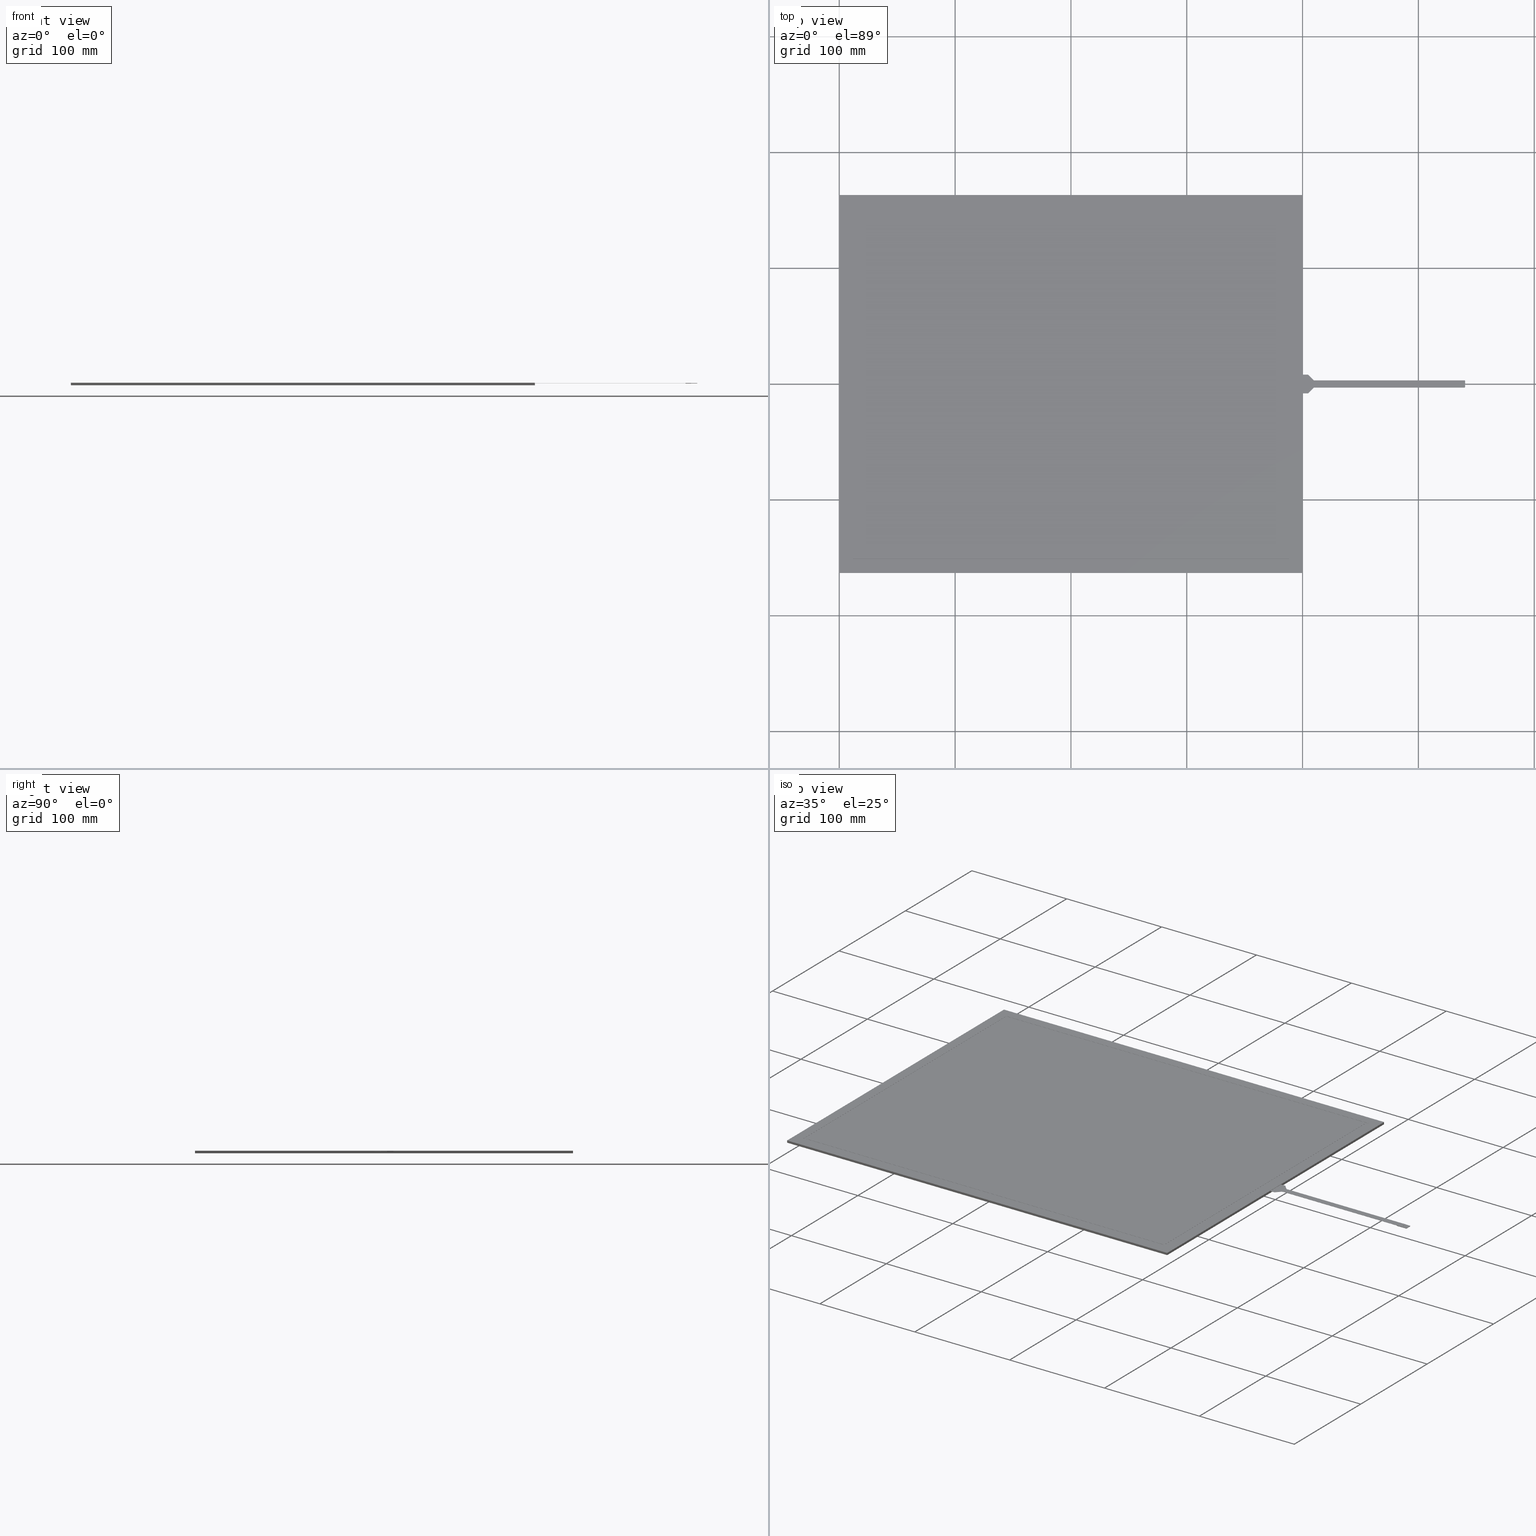
[diagram: canonical four-view strip — front | top / right | iso, engineering-drawing reading convention]
A machine part, canonical four-view strip (front | top / right | iso — engineering-drawing reading convention). The complete STEP part file that produces these views, byte-faithful:
ISO-10303-21;
HEADER;
/* Generated by software containing ST-Developer
 * from STEP Tools, Inc. (www.steptools.com) 
 */

FILE_DESCRIPTION(
/* description */ (''),
/* implementation_level */ '2;1');

FILE_NAME(
/* name */ 
'\\\\172.16.4.5\\\X2\65B06280885390E8\X0\$\\03 \X2\8A2D8A0830C730FC30BF\X0\\\
\X2\62B56297819C\X0\\\\X2\6A196E9654C1\X0\\\13. HP\X2\752856F39762\X0\\\
1. AST\\3D\X2\30C730FC30BF\X0\\\AST-190A140A\\AST-190A140A.stp',
/* time_stamp */ '2023-08-08T17:43:09+09:00',
/* author */ ('n-hirata'),
/* organization */ (''),
/* preprocessor_version */ 'ST-DEVELOPER v18.1',
/* originating_system */ 'Autodesk Inventor 2020',
/* authorisation */ '');

FILE_SCHEMA (('CONFIG_CONTROL_DESIGN'));
ENDSEC;

DATA;
#10=MECHANICAL_DESIGN_GEOMETRIC_PRESENTATION_REPRESENTATION('',(#30,#31,
#32,#33,#34,#35,#36,#37,#38,#39,#40,#41,#42,#43,#44),#1571);
#11=GEOMETRICALLY_BOUNDED_WIREFRAME_SHAPE_REPRESENTATION('',(#12),#1570);
#12=GEOMETRIC_CURVE_SET('\X2\30B930B130C330C1\X0\1',(#16,#17,#18,#19,#20,
#21,#22,#23,#24,#25,#26,#27,#28,#29));
#13=SHAPE_REPRESENTATION_RELATIONSHIP('SRR','None',#1578,#15);
#14=SHAPE_REPRESENTATION_RELATIONSHIP('SRR','None',#1578,#11);
#15=ADVANCED_BREP_SHAPE_REPRESENTATION('',(#45),#1570);
#16=POLYLINE('',(#1540,#1541));
#17=POLYLINE('',(#1542,#1543));
#18=POLYLINE('',(#1544,#1545));
#19=POLYLINE('',(#1546,#1547));
#20=POLYLINE('',(#1548,#1549));
#21=POLYLINE('',(#1550,#1551));
#22=POLYLINE('',(#1552,#1553));
#23=POLYLINE('',(#1554,#1555));
#24=POLYLINE('',(#1556,#1557));
#25=POLYLINE('',(#1558,#1559));
#26=POLYLINE('',(#1560,#1561));
#27=POLYLINE('',(#1562,#1563));
#28=POLYLINE('',(#1564,#1565));
#29=POLYLINE('',(#1566,#1567));
#30=STYLED_ITEM('',(#1587),#45);
#31=STYLED_ITEM('',(#1588),#16);
#32=STYLED_ITEM('',(#1588),#17);
#33=STYLED_ITEM('',(#1589),#18);
#34=STYLED_ITEM('',(#1589),#19);
#35=STYLED_ITEM('',(#1589),#20);
#36=STYLED_ITEM('',(#1589),#21);
#37=STYLED_ITEM('',(#1589),#22);
#38=STYLED_ITEM('',(#1589),#23);
#39=STYLED_ITEM('',(#1589),#24);
#40=STYLED_ITEM('',(#1589),#25);
#41=STYLED_ITEM('',(#1589),#26);
#42=STYLED_ITEM('',(#1589),#27);
#43=STYLED_ITEM('',(#1589),#28);
#44=STYLED_ITEM('',(#1589),#29);
#45=MANIFOLD_SOLID_BREP('\X2\30BD30EA30C330C9\X0\2',#969);
#46=FACE_BOUND('',#183,.T.);
#47=FACE_BOUND('',#185,.T.);
#48=FACE_BOUND('',#189,.T.);
#49=PLANE('',#992);
#50=PLANE('',#993);
#51=PLANE('',#997);
#52=PLANE('',#998);
#53=PLANE('',#1002);
#54=PLANE('',#1003);
#55=PLANE('',#1004);
#56=PLANE('',#1005);
#57=PLANE('',#1006);
#58=PLANE('',#1007);
#59=PLANE('',#1008);
#60=PLANE('',#1009);
#61=PLANE('',#1010);
#62=PLANE('',#1011);
#63=PLANE('',#1012);
#64=PLANE('',#1013);
#65=PLANE('',#1014);
#66=PLANE('',#1015);
#67=PLANE('',#1016);
#68=PLANE('',#1017);
#69=PLANE('',#1018);
#70=PLANE('',#1019);
#71=PLANE('',#1020);
#72=PLANE('',#1021);
#73=PLANE('',#1022);
#74=PLANE('',#1023);
#75=PLANE('',#1024);
#76=PLANE('',#1025);
#77=PLANE('',#1026);
#78=PLANE('',#1027);
#79=PLANE('',#1028);
#80=PLANE('',#1029);
#81=PLANE('',#1030);
#82=PLANE('',#1031);
#83=PLANE('',#1032);
#84=PLANE('',#1033);
#85=PLANE('',#1034);
#86=PLANE('',#1035);
#87=PLANE('',#1036);
#88=PLANE('',#1037);
#89=PLANE('',#1038);
#90=PLANE('',#1039);
#91=PLANE('',#1040);
#92=PLANE('',#1041);
#93=PLANE('',#1042);
#94=FACE_OUTER_BOUND('',#142,.T.);
#95=FACE_OUTER_BOUND('',#143,.T.);
#96=FACE_OUTER_BOUND('',#144,.T.);
#97=FACE_OUTER_BOUND('',#145,.T.);
#98=FACE_OUTER_BOUND('',#146,.T.);
#99=FACE_OUTER_BOUND('',#147,.T.);
#100=FACE_OUTER_BOUND('',#148,.T.);
#101=FACE_OUTER_BOUND('',#149,.T.);
#102=FACE_OUTER_BOUND('',#150,.T.);
#103=FACE_OUTER_BOUND('',#151,.T.);
#104=FACE_OUTER_BOUND('',#152,.T.);
#105=FACE_OUTER_BOUND('',#153,.T.);
#106=FACE_OUTER_BOUND('',#154,.T.);
#107=FACE_OUTER_BOUND('',#155,.T.);
#108=FACE_OUTER_BOUND('',#156,.T.);
#109=FACE_OUTER_BOUND('',#157,.T.);
#110=FACE_OUTER_BOUND('',#158,.T.);
#111=FACE_OUTER_BOUND('',#159,.T.);
#112=FACE_OUTER_BOUND('',#160,.T.);
#113=FACE_OUTER_BOUND('',#161,.T.);
#114=FACE_OUTER_BOUND('',#162,.T.);
#115=FACE_OUTER_BOUND('',#163,.T.);
#116=FACE_OUTER_BOUND('',#164,.T.);
#117=FACE_OUTER_BOUND('',#165,.T.);
#118=FACE_OUTER_BOUND('',#166,.T.);
#119=FACE_OUTER_BOUND('',#167,.T.);
#120=FACE_OUTER_BOUND('',#168,.T.);
#121=FACE_OUTER_BOUND('',#169,.T.);
#122=FACE_OUTER_BOUND('',#170,.T.);
#123=FACE_OUTER_BOUND('',#171,.T.);
#124=FACE_OUTER_BOUND('',#172,.T.);
#125=FACE_OUTER_BOUND('',#173,.T.);
#126=FACE_OUTER_BOUND('',#174,.T.);
#127=FACE_OUTER_BOUND('',#175,.T.);
#128=FACE_OUTER_BOUND('',#176,.T.);
#129=FACE_OUTER_BOUND('',#177,.T.);
#130=FACE_OUTER_BOUND('',#178,.T.);
#131=FACE_OUTER_BOUND('',#179,.T.);
#132=FACE_OUTER_BOUND('',#180,.T.);
#133=FACE_OUTER_BOUND('',#181,.T.);
#134=FACE_OUTER_BOUND('',#182,.T.);
#135=FACE_OUTER_BOUND('',#184,.T.);
#136=FACE_OUTER_BOUND('',#186,.T.);
#137=FACE_OUTER_BOUND('',#187,.T.);
#138=FACE_OUTER_BOUND('',#188,.T.);
#139=FACE_OUTER_BOUND('',#190,.T.);
#140=FACE_OUTER_BOUND('',#191,.T.);
#141=FACE_OUTER_BOUND('',#192,.T.);
#142=EDGE_LOOP('',(#660,#661,#662,#663));
#143=EDGE_LOOP('',(#664,#665,#666,#667,#668,#669,#670,#671,#672));
#144=EDGE_LOOP('',(#673,#674,#675,#676));
#145=EDGE_LOOP('',(#677,#678,#679,#680));
#146=EDGE_LOOP('',(#681,#682,#683,#684,#685,#686,#687,#688,#689,#690,#691,
#692,#693,#694,#695,#696,#697,#698,#699,#700));
#147=EDGE_LOOP('',(#701,#702,#703,#704,#705));
#148=EDGE_LOOP('',(#706,#707,#708,#709));
#149=EDGE_LOOP('',(#710,#711,#712,#713,#714,#715,#716,#717));
#150=EDGE_LOOP('',(#718,#719,#720,#721,#722));
#151=EDGE_LOOP('',(#723,#724,#725,#726));
#152=EDGE_LOOP('',(#727,#728,#729,#730));
#153=EDGE_LOOP('',(#731,#732,#733,#734));
#154=EDGE_LOOP('',(#735,#736,#737,#738));
#155=EDGE_LOOP('',(#739,#740,#741,#742));
#156=EDGE_LOOP('',(#743,#744,#745,#746));
#157=EDGE_LOOP('',(#747,#748,#749,#750));
#158=EDGE_LOOP('',(#751,#752,#753,#754));
#159=EDGE_LOOP('',(#755,#756,#757,#758));
#160=EDGE_LOOP('',(#759,#760,#761,#762));
#161=EDGE_LOOP('',(#763,#764,#765,#766));
#162=EDGE_LOOP('',(#767,#768,#769,#770));
#163=EDGE_LOOP('',(#771,#772,#773,#774));
#164=EDGE_LOOP('',(#775,#776,#777,#778));
#165=EDGE_LOOP('',(#779,#780,#781,#782));
#166=EDGE_LOOP('',(#783,#784,#785,#786,#787,#788,#789,#790,#791,#792,#793,
#794,#795,#796,#797,#798,#799,#800,#801,#802));
#167=EDGE_LOOP('',(#803,#804,#805,#806));
#168=EDGE_LOOP('',(#807,#808,#809,#810,#811,#812));
#169=EDGE_LOOP('',(#813,#814,#815,#816));
#170=EDGE_LOOP('',(#817,#818,#819,#820));
#171=EDGE_LOOP('',(#821,#822,#823,#824));
#172=EDGE_LOOP('',(#825,#826,#827,#828,#829,#830,#831,#832));
#173=EDGE_LOOP('',(#833,#834,#835,#836,#837,#838,#839,#840,#841));
#174=EDGE_LOOP('',(#842,#843,#844,#845));
#175=EDGE_LOOP('',(#846,#847,#848,#849));
#176=EDGE_LOOP('',(#850,#851,#852,#853));
#177=EDGE_LOOP('',(#854,#855,#856,#857));
#178=EDGE_LOOP('',(#858,#859,#860,#861));
#179=EDGE_LOOP('',(#862,#863,#864,#865));
#180=EDGE_LOOP('',(#866,#867,#868,#869));
#181=EDGE_LOOP('',(#870,#871,#872,#873));
#182=EDGE_LOOP('',(#874,#875,#876,#877));
#183=EDGE_LOOP('',(#878,#879,#880,#881));
#184=EDGE_LOOP('',(#882,#883,#884,#885));
#185=EDGE_LOOP('',(#886,#887,#888,#889));
#186=EDGE_LOOP('',(#890,#891,#892,#893));
#187=EDGE_LOOP('',(#894,#895,#896,#897));
#188=EDGE_LOOP('',(#898,#899,#900,#901));
#189=EDGE_LOOP('',(#902,#903,#904,#905));
#190=EDGE_LOOP('',(#906,#907,#908,#909));
#191=EDGE_LOOP('',(#910,#911,#912,#913));
#192=EDGE_LOOP('',(#914,#915,#916,#917));
#193=LINE('',#1282,#316);
#194=LINE('',#1285,#317);
#195=LINE('',#1288,#318);
#196=LINE('',#1290,#319);
#197=LINE('',#1292,#320);
#198=LINE('',#1294,#321);
#199=LINE('',#1296,#322);
#200=LINE('',#1298,#323);
#201=LINE('',#1300,#324);
#202=LINE('',#1301,#325);
#203=LINE('',#1304,#326);
#204=LINE('',#1305,#327);
#205=LINE('',#1311,#328);
#206=LINE('',#1314,#329);
#207=LINE('',#1317,#330);
#208=LINE('',#1319,#331);
#209=LINE('',#1321,#332);
#210=LINE('',#1323,#333);
#211=LINE('',#1325,#334);
#212=LINE('',#1327,#335);
#213=LINE('',#1329,#336);
#214=LINE('',#1331,#337);
#215=LINE('',#1333,#338);
#216=LINE('',#1335,#339);
#217=LINE('',#1337,#340);
#218=LINE('',#1339,#341);
#219=LINE('',#1341,#342);
#220=LINE('',#1343,#343);
#221=LINE('',#1345,#344);
#222=LINE('',#1347,#345);
#223=LINE('',#1349,#346);
#224=LINE('',#1351,#347);
#225=LINE('',#1352,#348);
#226=LINE('',#1355,#349);
#227=LINE('',#1357,#350);
#228=LINE('',#1358,#351);
#229=LINE('',#1364,#352);
#230=LINE('',#1367,#353);
#231=LINE('',#1369,#354);
#232=LINE('',#1371,#355);
#233=LINE('',#1372,#356);
#234=LINE('',#1374,#357);
#235=LINE('',#1375,#358);
#236=LINE('',#1378,#359);
#237=LINE('',#1379,#360);
#238=LINE('',#1382,#361);
#239=LINE('',#1384,#362);
#240=LINE('',#1385,#363);
#241=LINE('',#1388,#364);
#242=LINE('',#1389,#365);
#243=LINE('',#1391,#366);
#244=LINE('',#1394,#367);
#245=LINE('',#1396,#368);
#246=LINE('',#1397,#369);
#247=LINE('',#1400,#370);
#248=LINE('',#1402,#371);
#249=LINE('',#1403,#372);
#250=LINE('',#1405,#373);
#251=LINE('',#1408,#374);
#252=LINE('',#1410,#375);
#253=LINE('',#1411,#376);
#254=LINE('',#1414,#377);
#255=LINE('',#1416,#378);
#256=LINE('',#1417,#379);
#257=LINE('',#1419,#380);
#258=LINE('',#1422,#381);
#259=LINE('',#1423,#382);
#260=LINE('',#1425,#383);
#261=LINE('',#1428,#384);
#262=LINE('',#1429,#385);
#263=LINE('',#1432,#386);
#264=LINE('',#1433,#387);
#265=LINE('',#1435,#388);
#266=LINE('',#1437,#389);
#267=LINE('',#1440,#390);
#268=LINE('',#1441,#391);
#269=LINE('',#1444,#392);
#270=LINE('',#1445,#393);
#271=LINE('',#1447,#394);
#272=LINE('',#1450,#395);
#273=LINE('',#1451,#396);
#274=LINE('',#1455,#397);
#275=LINE('',#1456,#398);
#276=LINE('',#1457,#399);
#277=LINE('',#1459,#400);
#278=LINE('',#1461,#401);
#279=LINE('',#1463,#402);
#280=LINE('',#1467,#403);
#281=LINE('',#1469,#404);
#282=LINE('',#1471,#405);
#283=LINE('',#1472,#406);
#284=LINE('',#1475,#407);
#285=LINE('',#1477,#408);
#286=LINE('',#1478,#409);
#287=LINE('',#1481,#410);
#288=LINE('',#1483,#411);
#289=LINE('',#1484,#412);
#290=LINE('',#1486,#413);
#291=LINE('',#1487,#414);
#292=LINE('',#1491,#415);
#293=LINE('',#1493,#416);
#294=LINE('',#1495,#417);
#295=LINE('',#1496,#418);
#296=LINE('',#1499,#419);
#297=LINE('',#1501,#420);
#298=LINE('',#1502,#421);
#299=LINE('',#1505,#422);
#300=LINE('',#1507,#423);
#301=LINE('',#1508,#424);
#302=LINE('',#1510,#425);
#303=LINE('',#1511,#426);
#304=LINE('',#1516,#427);
#305=LINE('',#1518,#428);
#306=LINE('',#1520,#429);
#307=LINE('',#1521,#430);
#308=LINE('',#1524,#431);
#309=LINE('',#1526,#432);
#310=LINE('',#1527,#433);
#311=LINE('',#1530,#434);
#312=LINE('',#1531,#435);
#313=LINE('',#1534,#436);
#314=LINE('',#1535,#437);
#315=LINE('',#1537,#438);
#316=VECTOR('',#1049,10.);
#317=VECTOR('',#1052,10.);
#318=VECTOR('',#1055,10.);
#319=VECTOR('',#1056,10.);
#320=VECTOR('',#1057,10.);
#321=VECTOR('',#1058,10.);
#322=VECTOR('',#1059,10.);
#323=VECTOR('',#1060,10.);
#324=VECTOR('',#1061,10.);
#325=VECTOR('',#1062,10.);
#326=VECTOR('',#1065,10.);
#327=VECTOR('',#1066,10.);
#328=VECTOR('',#1071,10.);
#329=VECTOR('',#1074,10.);
#330=VECTOR('',#1077,10.);
#331=VECTOR('',#1078,10.);
#332=VECTOR('',#1079,10.);
#333=VECTOR('',#1080,10.);
#334=VECTOR('',#1081,10.);
#335=VECTOR('',#1082,10.);
#336=VECTOR('',#1083,10.);
#337=VECTOR('',#1084,10.);
#338=VECTOR('',#1085,10.);
#339=VECTOR('',#1086,10.);
#340=VECTOR('',#1087,10.);
#341=VECTOR('',#1088,10.);
#342=VECTOR('',#1089,10.);
#343=VECTOR('',#1090,10.);
#344=VECTOR('',#1091,10.);
#345=VECTOR('',#1092,10.);
#346=VECTOR('',#1093,10.);
#347=VECTOR('',#1094,10.);
#348=VECTOR('',#1095,10.);
#349=VECTOR('',#1098,10.);
#350=VECTOR('',#1099,10.);
#351=VECTOR('',#1100,10.);
#352=VECTOR('',#1107,10.);
#353=VECTOR('',#1110,10.);
#354=VECTOR('',#1111,10.);
#355=VECTOR('',#1112,10.);
#356=VECTOR('',#1113,10.);
#357=VECTOR('',#1114,10.);
#358=VECTOR('',#1115,10.);
#359=VECTOR('',#1118,10.);
#360=VECTOR('',#1119,10.);
#361=VECTOR('',#1122,10.);
#362=VECTOR('',#1123,10.);
#363=VECTOR('',#1124,10.);
#364=VECTOR('',#1127,10.);
#365=VECTOR('',#1128,10.);
#366=VECTOR('',#1131,10.);
#367=VECTOR('',#1134,10.);
#368=VECTOR('',#1135,10.);
#369=VECTOR('',#1136,10.);
#370=VECTOR('',#1139,10.);
#371=VECTOR('',#1140,10.);
#372=VECTOR('',#1141,10.);
#373=VECTOR('',#1144,10.);
#374=VECTOR('',#1147,10.);
#375=VECTOR('',#1148,10.);
#376=VECTOR('',#1149,10.);
#377=VECTOR('',#1152,10.);
#378=VECTOR('',#1153,10.);
#379=VECTOR('',#1154,10.);
#380=VECTOR('',#1157,10.);
#381=VECTOR('',#1160,10.);
#382=VECTOR('',#1161,10.);
#383=VECTOR('',#1164,10.);
#384=VECTOR('',#1167,10.);
#385=VECTOR('',#1168,10.);
#386=VECTOR('',#1171,10.);
#387=VECTOR('',#1172,10.);
#388=VECTOR('',#1175,10.);
#389=VECTOR('',#1178,10.);
#390=VECTOR('',#1181,10.);
#391=VECTOR('',#1182,10.);
#392=VECTOR('',#1185,10.);
#393=VECTOR('',#1186,10.);
#394=VECTOR('',#1189,10.);
#395=VECTOR('',#1192,10.);
#396=VECTOR('',#1193,10.);
#397=VECTOR('',#1196,10.);
#398=VECTOR('',#1197,10.);
#399=VECTOR('',#1198,10.);
#400=VECTOR('',#1201,10.);
#401=VECTOR('',#1204,10.);
#402=VECTOR('',#1207,10.);
#403=VECTOR('',#1210,10.);
#404=VECTOR('',#1211,10.);
#405=VECTOR('',#1212,10.);
#406=VECTOR('',#1213,10.);
#407=VECTOR('',#1216,10.);
#408=VECTOR('',#1217,10.);
#409=VECTOR('',#1218,10.);
#410=VECTOR('',#1221,10.);
#411=VECTOR('',#1222,10.);
#412=VECTOR('',#1223,10.);
#413=VECTOR('',#1226,10.);
#414=VECTOR('',#1227,10.);
#415=VECTOR('',#1230,10.);
#416=VECTOR('',#1231,10.);
#417=VECTOR('',#1232,10.);
#418=VECTOR('',#1233,10.);
#419=VECTOR('',#1236,10.);
#420=VECTOR('',#1237,10.);
#421=VECTOR('',#1238,10.);
#422=VECTOR('',#1241,10.);
#423=VECTOR('',#1242,10.);
#424=VECTOR('',#1243,10.);
#425=VECTOR('',#1246,10.);
#426=VECTOR('',#1247,10.);
#427=VECTOR('',#1252,10.);
#428=VECTOR('',#1253,10.);
#429=VECTOR('',#1254,10.);
#430=VECTOR('',#1255,10.);
#431=VECTOR('',#1258,10.);
#432=VECTOR('',#1259,10.);
#433=VECTOR('',#1260,10.);
#434=VECTOR('',#1263,10.);
#435=VECTOR('',#1264,10.);
#436=VECTOR('',#1267,10.);
#437=VECTOR('',#1268,10.);
#438=VECTOR('',#1271,10.);
#439=CIRCLE('',#990,1.);
#440=CIRCLE('',#991,1.);
#441=CIRCLE('',#995,0.5);
#442=CIRCLE('',#996,0.5);
#443=CIRCLE('',#1000,0.5);
#444=CIRCLE('',#1001,0.5);
#445=VERTEX_POINT('',#1278);
#446=VERTEX_POINT('',#1279);
#447=VERTEX_POINT('',#1281);
#448=VERTEX_POINT('',#1283);
#449=VERTEX_POINT('',#1287);
#450=VERTEX_POINT('',#1289);
#451=VERTEX_POINT('',#1291);
#452=VERTEX_POINT('',#1293);
#453=VERTEX_POINT('',#1295);
#454=VERTEX_POINT('',#1297);
#455=VERTEX_POINT('',#1299);
#456=VERTEX_POINT('',#1303);
#457=VERTEX_POINT('',#1307);
#458=VERTEX_POINT('',#1308);
#459=VERTEX_POINT('',#1310);
#460=VERTEX_POINT('',#1312);
#461=VERTEX_POINT('',#1316);
#462=VERTEX_POINT('',#1318);
#463=VERTEX_POINT('',#1320);
#464=VERTEX_POINT('',#1322);
#465=VERTEX_POINT('',#1324);
#466=VERTEX_POINT('',#1326);
#467=VERTEX_POINT('',#1328);
#468=VERTEX_POINT('',#1330);
#469=VERTEX_POINT('',#1332);
#470=VERTEX_POINT('',#1334);
#471=VERTEX_POINT('',#1336);
#472=VERTEX_POINT('',#1338);
#473=VERTEX_POINT('',#1340);
#474=VERTEX_POINT('',#1342);
#475=VERTEX_POINT('',#1344);
#476=VERTEX_POINT('',#1346);
#477=VERTEX_POINT('',#1348);
#478=VERTEX_POINT('',#1350);
#479=VERTEX_POINT('',#1354);
#480=VERTEX_POINT('',#1356);
#481=VERTEX_POINT('',#1360);
#482=VERTEX_POINT('',#1362);
#483=VERTEX_POINT('',#1366);
#484=VERTEX_POINT('',#1368);
#485=VERTEX_POINT('',#1370);
#486=VERTEX_POINT('',#1373);
#487=VERTEX_POINT('',#1377);
#488=VERTEX_POINT('',#1381);
#489=VERTEX_POINT('',#1383);
#490=VERTEX_POINT('',#1387);
#491=VERTEX_POINT('',#1393);
#492=VERTEX_POINT('',#1395);
#493=VERTEX_POINT('',#1399);
#494=VERTEX_POINT('',#1401);
#495=VERTEX_POINT('',#1407);
#496=VERTEX_POINT('',#1409);
#497=VERTEX_POINT('',#1413);
#498=VERTEX_POINT('',#1415);
#499=VERTEX_POINT('',#1421);
#500=VERTEX_POINT('',#1427);
#501=VERTEX_POINT('',#1431);
#502=VERTEX_POINT('',#1439);
#503=VERTEX_POINT('',#1443);
#504=VERTEX_POINT('',#1449);
#505=VERTEX_POINT('',#1453);
#506=VERTEX_POINT('',#1454);
#507=VERTEX_POINT('',#1465);
#508=VERTEX_POINT('',#1466);
#509=VERTEX_POINT('',#1468);
#510=VERTEX_POINT('',#1470);
#511=VERTEX_POINT('',#1474);
#512=VERTEX_POINT('',#1476);
#513=VERTEX_POINT('',#1480);
#514=VERTEX_POINT('',#1482);
#515=VERTEX_POINT('',#1489);
#516=VERTEX_POINT('',#1490);
#517=VERTEX_POINT('',#1492);
#518=VERTEX_POINT('',#1494);
#519=VERTEX_POINT('',#1498);
#520=VERTEX_POINT('',#1500);
#521=VERTEX_POINT('',#1504);
#522=VERTEX_POINT('',#1506);
#523=VERTEX_POINT('',#1514);
#524=VERTEX_POINT('',#1515);
#525=VERTEX_POINT('',#1517);
#526=VERTEX_POINT('',#1519);
#527=VERTEX_POINT('',#1523);
#528=VERTEX_POINT('',#1525);
#529=VERTEX_POINT('',#1529);
#530=VERTEX_POINT('',#1533);
#531=EDGE_CURVE('',#445,#446,#439,.T.);
#532=EDGE_CURVE('',#446,#447,#193,.T.);
#533=EDGE_CURVE('',#447,#448,#440,.T.);
#534=EDGE_CURVE('',#448,#445,#194,.T.);
#535=EDGE_CURVE('',#445,#449,#195,.T.);
#536=EDGE_CURVE('',#449,#450,#196,.T.);
#537=EDGE_CURVE('',#450,#451,#197,.T.);
#538=EDGE_CURVE('',#451,#452,#198,.T.);
#539=EDGE_CURVE('',#452,#453,#199,.T.);
#540=EDGE_CURVE('',#453,#454,#200,.T.);
#541=EDGE_CURVE('',#455,#454,#201,.T.);
#542=EDGE_CURVE('',#455,#446,#202,.T.);
#543=EDGE_CURVE('',#456,#448,#203,.T.);
#544=EDGE_CURVE('',#456,#449,#204,.T.);
#545=EDGE_CURVE('',#457,#458,#441,.T.);
#546=EDGE_CURVE('',#458,#459,#205,.T.);
#547=EDGE_CURVE('',#459,#460,#442,.T.);
#548=EDGE_CURVE('',#460,#457,#206,.T.);
#549=EDGE_CURVE('',#460,#461,#207,.T.);
#550=EDGE_CURVE('',#461,#462,#208,.T.);
#551=EDGE_CURVE('',#463,#462,#209,.T.);
#552=EDGE_CURVE('',#464,#463,#210,.T.);
#553=EDGE_CURVE('',#464,#465,#211,.T.);
#554=EDGE_CURVE('',#465,#466,#212,.T.);
#555=EDGE_CURVE('',#467,#466,#213,.T.);
#556=EDGE_CURVE('',#468,#467,#214,.T.);
#557=EDGE_CURVE('',#468,#469,#215,.T.);
#558=EDGE_CURVE('',#469,#470,#216,.T.);
#559=EDGE_CURVE('',#471,#470,#217,.T.);
#560=EDGE_CURVE('',#472,#471,#218,.T.);
#561=EDGE_CURVE('',#472,#473,#219,.T.);
#562=EDGE_CURVE('',#473,#474,#220,.T.);
#563=EDGE_CURVE('',#475,#474,#221,.T.);
#564=EDGE_CURVE('',#476,#475,#222,.T.);
#565=EDGE_CURVE('',#476,#477,#223,.T.);
#566=EDGE_CURVE('',#478,#477,#224,.T.);
#567=EDGE_CURVE('',#457,#478,#225,.T.);
#568=EDGE_CURVE('',#479,#459,#226,.T.);
#569=EDGE_CURVE('',#480,#479,#227,.T.);
#570=EDGE_CURVE('',#480,#461,#228,.T.);
#571=EDGE_CURVE('',#481,#478,#443,.T.);
#572=EDGE_CURVE('',#477,#482,#444,.T.);
#573=EDGE_CURVE('',#482,#481,#229,.T.);
#574=EDGE_CURVE('',#482,#483,#230,.T.);
#575=EDGE_CURVE('',#483,#484,#231,.T.);
#576=EDGE_CURVE('',#485,#484,#232,.T.);
#577=EDGE_CURVE('',#485,#452,#233,.T.);
#578=EDGE_CURVE('',#451,#486,#234,.T.);
#579=EDGE_CURVE('',#481,#486,#235,.T.);
#580=EDGE_CURVE('',#476,#487,#236,.T.);
#581=EDGE_CURVE('',#483,#487,#237,.T.);
#582=EDGE_CURVE('',#488,#473,#238,.T.);
#583=EDGE_CURVE('',#489,#488,#239,.T.);
#584=EDGE_CURVE('',#474,#489,#240,.T.);
#585=EDGE_CURVE('',#490,#475,#241,.T.);
#586=EDGE_CURVE('',#487,#490,#242,.T.);
#587=EDGE_CURVE('',#490,#489,#243,.T.);
#588=EDGE_CURVE('',#491,#469,#244,.T.);
#589=EDGE_CURVE('',#492,#491,#245,.T.);
#590=EDGE_CURVE('',#470,#492,#246,.T.);
#591=EDGE_CURVE('',#472,#493,#247,.T.);
#592=EDGE_CURVE('',#494,#471,#248,.T.);
#593=EDGE_CURVE('',#493,#494,#249,.T.);
#594=EDGE_CURVE('',#494,#492,#250,.T.);
#595=EDGE_CURVE('',#495,#465,#251,.T.);
#596=EDGE_CURVE('',#496,#495,#252,.T.);
#597=EDGE_CURVE('',#466,#496,#253,.T.);
#598=EDGE_CURVE('',#468,#497,#254,.T.);
#599=EDGE_CURVE('',#498,#467,#255,.T.);
#600=EDGE_CURVE('',#497,#498,#256,.T.);
#601=EDGE_CURVE('',#498,#496,#257,.T.);
#602=EDGE_CURVE('',#464,#499,#258,.T.);
#603=EDGE_CURVE('',#495,#499,#259,.T.);
#604=EDGE_CURVE('',#491,#497,#260,.T.);
#605=EDGE_CURVE('',#500,#480,#261,.T.);
#606=EDGE_CURVE('',#462,#500,#262,.T.);
#607=EDGE_CURVE('',#501,#463,#263,.T.);
#608=EDGE_CURVE('',#499,#501,#264,.T.);
#609=EDGE_CURVE('',#501,#500,#265,.T.);
#610=EDGE_CURVE('',#488,#493,#266,.T.);
#611=EDGE_CURVE('',#502,#479,#267,.T.);
#612=EDGE_CURVE('',#484,#502,#268,.T.);
#613=EDGE_CURVE('',#450,#503,#269,.T.);
#614=EDGE_CURVE('',#486,#503,#270,.T.);
#615=EDGE_CURVE('',#503,#458,#271,.T.);
#616=EDGE_CURVE('',#504,#455,#272,.T.);
#617=EDGE_CURVE('',#447,#504,#273,.T.);
#618=EDGE_CURVE('',#505,#506,#274,.T.);
#619=EDGE_CURVE('',#454,#505,#275,.T.);
#620=EDGE_CURVE('',#506,#453,#276,.T.);
#621=EDGE_CURVE('',#506,#485,#277,.T.);
#622=EDGE_CURVE('',#502,#456,#278,.T.);
#623=EDGE_CURVE('',#505,#504,#279,.T.);
#624=EDGE_CURVE('',#507,#508,#280,.T.);
#625=EDGE_CURVE('',#507,#509,#281,.T.);
#626=EDGE_CURVE('',#509,#510,#282,.T.);
#627=EDGE_CURVE('',#508,#510,#283,.T.);
#628=EDGE_CURVE('',#511,#507,#284,.T.);
#629=EDGE_CURVE('',#511,#512,#285,.T.);
#630=EDGE_CURVE('',#512,#509,#286,.T.);
#631=EDGE_CURVE('',#513,#511,#287,.T.);
#632=EDGE_CURVE('',#513,#514,#288,.T.);
#633=EDGE_CURVE('',#514,#512,#289,.T.);
#634=EDGE_CURVE('',#508,#513,#290,.T.);
#635=EDGE_CURVE('',#510,#514,#291,.T.);
#636=EDGE_CURVE('',#515,#516,#292,.T.);
#637=EDGE_CURVE('',#515,#517,#293,.T.);
#638=EDGE_CURVE('',#517,#518,#294,.T.);
#639=EDGE_CURVE('',#516,#518,#295,.T.);
#640=EDGE_CURVE('',#519,#515,#296,.T.);
#641=EDGE_CURVE('',#519,#520,#297,.T.);
#642=EDGE_CURVE('',#520,#517,#298,.T.);
#643=EDGE_CURVE('',#521,#519,#299,.T.);
#644=EDGE_CURVE('',#521,#522,#300,.T.);
#645=EDGE_CURVE('',#522,#520,#301,.T.);
#646=EDGE_CURVE('',#516,#521,#302,.T.);
#647=EDGE_CURVE('',#518,#522,#303,.T.);
#648=EDGE_CURVE('',#523,#524,#304,.T.);
#649=EDGE_CURVE('',#524,#525,#305,.T.);
#650=EDGE_CURVE('',#525,#526,#306,.T.);
#651=EDGE_CURVE('',#526,#523,#307,.T.);
#652=EDGE_CURVE('',#524,#527,#308,.T.);
#653=EDGE_CURVE('',#528,#527,#309,.T.);
#654=EDGE_CURVE('',#525,#528,#310,.T.);
#655=EDGE_CURVE('',#529,#528,#311,.T.);
#656=EDGE_CURVE('',#526,#529,#312,.T.);
#657=EDGE_CURVE('',#530,#529,#313,.T.);
#658=EDGE_CURVE('',#523,#530,#314,.T.);
#659=EDGE_CURVE('',#527,#530,#315,.T.);
#660=ORIENTED_EDGE('',*,*,#531,.T.);
#661=ORIENTED_EDGE('',*,*,#532,.T.);
#662=ORIENTED_EDGE('',*,*,#533,.T.);
#663=ORIENTED_EDGE('',*,*,#534,.T.);
#664=ORIENTED_EDGE('',*,*,#531,.F.);
#665=ORIENTED_EDGE('',*,*,#535,.T.);
#666=ORIENTED_EDGE('',*,*,#536,.T.);
#667=ORIENTED_EDGE('',*,*,#537,.T.);
#668=ORIENTED_EDGE('',*,*,#538,.T.);
#669=ORIENTED_EDGE('',*,*,#539,.T.);
#670=ORIENTED_EDGE('',*,*,#540,.T.);
#671=ORIENTED_EDGE('',*,*,#541,.F.);
#672=ORIENTED_EDGE('',*,*,#542,.T.);
#673=ORIENTED_EDGE('',*,*,#534,.F.);
#674=ORIENTED_EDGE('',*,*,#543,.F.);
#675=ORIENTED_EDGE('',*,*,#544,.T.);
#676=ORIENTED_EDGE('',*,*,#535,.F.);
#677=ORIENTED_EDGE('',*,*,#545,.T.);
#678=ORIENTED_EDGE('',*,*,#546,.T.);
#679=ORIENTED_EDGE('',*,*,#547,.T.);
#680=ORIENTED_EDGE('',*,*,#548,.T.);
#681=ORIENTED_EDGE('',*,*,#548,.F.);
#682=ORIENTED_EDGE('',*,*,#549,.T.);
#683=ORIENTED_EDGE('',*,*,#550,.T.);
#684=ORIENTED_EDGE('',*,*,#551,.F.);
#685=ORIENTED_EDGE('',*,*,#552,.F.);
#686=ORIENTED_EDGE('',*,*,#553,.T.);
#687=ORIENTED_EDGE('',*,*,#554,.T.);
#688=ORIENTED_EDGE('',*,*,#555,.F.);
#689=ORIENTED_EDGE('',*,*,#556,.F.);
#690=ORIENTED_EDGE('',*,*,#557,.T.);
#691=ORIENTED_EDGE('',*,*,#558,.T.);
#692=ORIENTED_EDGE('',*,*,#559,.F.);
#693=ORIENTED_EDGE('',*,*,#560,.F.);
#694=ORIENTED_EDGE('',*,*,#561,.T.);
#695=ORIENTED_EDGE('',*,*,#562,.T.);
#696=ORIENTED_EDGE('',*,*,#563,.F.);
#697=ORIENTED_EDGE('',*,*,#564,.F.);
#698=ORIENTED_EDGE('',*,*,#565,.T.);
#699=ORIENTED_EDGE('',*,*,#566,.F.);
#700=ORIENTED_EDGE('',*,*,#567,.F.);
#701=ORIENTED_EDGE('',*,*,#547,.F.);
#702=ORIENTED_EDGE('',*,*,#568,.F.);
#703=ORIENTED_EDGE('',*,*,#569,.F.);
#704=ORIENTED_EDGE('',*,*,#570,.T.);
#705=ORIENTED_EDGE('',*,*,#549,.F.);
#706=ORIENTED_EDGE('',*,*,#571,.T.);
#707=ORIENTED_EDGE('',*,*,#566,.T.);
#708=ORIENTED_EDGE('',*,*,#572,.T.);
#709=ORIENTED_EDGE('',*,*,#573,.T.);
#710=ORIENTED_EDGE('',*,*,#573,.F.);
#711=ORIENTED_EDGE('',*,*,#574,.T.);
#712=ORIENTED_EDGE('',*,*,#575,.T.);
#713=ORIENTED_EDGE('',*,*,#576,.F.);
#714=ORIENTED_EDGE('',*,*,#577,.T.);
#715=ORIENTED_EDGE('',*,*,#538,.F.);
#716=ORIENTED_EDGE('',*,*,#578,.T.);
#717=ORIENTED_EDGE('',*,*,#579,.F.);
#718=ORIENTED_EDGE('',*,*,#572,.F.);
#719=ORIENTED_EDGE('',*,*,#565,.F.);
#720=ORIENTED_EDGE('',*,*,#580,.T.);
#721=ORIENTED_EDGE('',*,*,#581,.F.);
#722=ORIENTED_EDGE('',*,*,#574,.F.);
#723=ORIENTED_EDGE('',*,*,#582,.F.);
#724=ORIENTED_EDGE('',*,*,#583,.F.);
#725=ORIENTED_EDGE('',*,*,#584,.F.);
#726=ORIENTED_EDGE('',*,*,#562,.F.);
#727=ORIENTED_EDGE('',*,*,#580,.F.);
#728=ORIENTED_EDGE('',*,*,#564,.T.);
#729=ORIENTED_EDGE('',*,*,#585,.F.);
#730=ORIENTED_EDGE('',*,*,#586,.F.);
#731=ORIENTED_EDGE('',*,*,#585,.T.);
#732=ORIENTED_EDGE('',*,*,#563,.T.);
#733=ORIENTED_EDGE('',*,*,#584,.T.);
#734=ORIENTED_EDGE('',*,*,#587,.F.);
#735=ORIENTED_EDGE('',*,*,#588,.F.);
#736=ORIENTED_EDGE('',*,*,#589,.F.);
#737=ORIENTED_EDGE('',*,*,#590,.F.);
#738=ORIENTED_EDGE('',*,*,#558,.F.);
#739=ORIENTED_EDGE('',*,*,#591,.F.);
#740=ORIENTED_EDGE('',*,*,#560,.T.);
#741=ORIENTED_EDGE('',*,*,#592,.F.);
#742=ORIENTED_EDGE('',*,*,#593,.F.);
#743=ORIENTED_EDGE('',*,*,#592,.T.);
#744=ORIENTED_EDGE('',*,*,#559,.T.);
#745=ORIENTED_EDGE('',*,*,#590,.T.);
#746=ORIENTED_EDGE('',*,*,#594,.F.);
#747=ORIENTED_EDGE('',*,*,#595,.F.);
#748=ORIENTED_EDGE('',*,*,#596,.F.);
#749=ORIENTED_EDGE('',*,*,#597,.F.);
#750=ORIENTED_EDGE('',*,*,#554,.F.);
#751=ORIENTED_EDGE('',*,*,#598,.F.);
#752=ORIENTED_EDGE('',*,*,#556,.T.);
#753=ORIENTED_EDGE('',*,*,#599,.F.);
#754=ORIENTED_EDGE('',*,*,#600,.F.);
#755=ORIENTED_EDGE('',*,*,#599,.T.);
#756=ORIENTED_EDGE('',*,*,#555,.T.);
#757=ORIENTED_EDGE('',*,*,#597,.T.);
#758=ORIENTED_EDGE('',*,*,#601,.F.);
#759=ORIENTED_EDGE('',*,*,#595,.T.);
#760=ORIENTED_EDGE('',*,*,#553,.F.);
#761=ORIENTED_EDGE('',*,*,#602,.T.);
#762=ORIENTED_EDGE('',*,*,#603,.F.);
#763=ORIENTED_EDGE('',*,*,#588,.T.);
#764=ORIENTED_EDGE('',*,*,#557,.F.);
#765=ORIENTED_EDGE('',*,*,#598,.T.);
#766=ORIENTED_EDGE('',*,*,#604,.F.);
#767=ORIENTED_EDGE('',*,*,#570,.F.);
#768=ORIENTED_EDGE('',*,*,#605,.F.);
#769=ORIENTED_EDGE('',*,*,#606,.F.);
#770=ORIENTED_EDGE('',*,*,#550,.F.);
#771=ORIENTED_EDGE('',*,*,#602,.F.);
#772=ORIENTED_EDGE('',*,*,#552,.T.);
#773=ORIENTED_EDGE('',*,*,#607,.F.);
#774=ORIENTED_EDGE('',*,*,#608,.F.);
#775=ORIENTED_EDGE('',*,*,#607,.T.);
#776=ORIENTED_EDGE('',*,*,#551,.T.);
#777=ORIENTED_EDGE('',*,*,#606,.T.);
#778=ORIENTED_EDGE('',*,*,#609,.F.);
#779=ORIENTED_EDGE('',*,*,#582,.T.);
#780=ORIENTED_EDGE('',*,*,#561,.F.);
#781=ORIENTED_EDGE('',*,*,#591,.T.);
#782=ORIENTED_EDGE('',*,*,#610,.F.);
#783=ORIENTED_EDGE('',*,*,#583,.T.);
#784=ORIENTED_EDGE('',*,*,#610,.T.);
#785=ORIENTED_EDGE('',*,*,#593,.T.);
#786=ORIENTED_EDGE('',*,*,#594,.T.);
#787=ORIENTED_EDGE('',*,*,#589,.T.);
#788=ORIENTED_EDGE('',*,*,#604,.T.);
#789=ORIENTED_EDGE('',*,*,#600,.T.);
#790=ORIENTED_EDGE('',*,*,#601,.T.);
#791=ORIENTED_EDGE('',*,*,#596,.T.);
#792=ORIENTED_EDGE('',*,*,#603,.T.);
#793=ORIENTED_EDGE('',*,*,#608,.T.);
#794=ORIENTED_EDGE('',*,*,#609,.T.);
#795=ORIENTED_EDGE('',*,*,#605,.T.);
#796=ORIENTED_EDGE('',*,*,#569,.T.);
#797=ORIENTED_EDGE('',*,*,#611,.F.);
#798=ORIENTED_EDGE('',*,*,#612,.F.);
#799=ORIENTED_EDGE('',*,*,#575,.F.);
#800=ORIENTED_EDGE('',*,*,#581,.T.);
#801=ORIENTED_EDGE('',*,*,#586,.T.);
#802=ORIENTED_EDGE('',*,*,#587,.T.);
#803=ORIENTED_EDGE('',*,*,#537,.F.);
#804=ORIENTED_EDGE('',*,*,#613,.T.);
#805=ORIENTED_EDGE('',*,*,#614,.F.);
#806=ORIENTED_EDGE('',*,*,#578,.F.);
#807=ORIENTED_EDGE('',*,*,#545,.F.);
#808=ORIENTED_EDGE('',*,*,#567,.T.);
#809=ORIENTED_EDGE('',*,*,#571,.F.);
#810=ORIENTED_EDGE('',*,*,#579,.T.);
#811=ORIENTED_EDGE('',*,*,#614,.T.);
#812=ORIENTED_EDGE('',*,*,#615,.T.);
#813=ORIENTED_EDGE('',*,*,#532,.F.);
#814=ORIENTED_EDGE('',*,*,#542,.F.);
#815=ORIENTED_EDGE('',*,*,#616,.F.);
#816=ORIENTED_EDGE('',*,*,#617,.F.);
#817=ORIENTED_EDGE('',*,*,#618,.F.);
#818=ORIENTED_EDGE('',*,*,#619,.F.);
#819=ORIENTED_EDGE('',*,*,#540,.F.);
#820=ORIENTED_EDGE('',*,*,#620,.F.);
#821=ORIENTED_EDGE('',*,*,#621,.F.);
#822=ORIENTED_EDGE('',*,*,#620,.T.);
#823=ORIENTED_EDGE('',*,*,#539,.F.);
#824=ORIENTED_EDGE('',*,*,#577,.F.);
#825=ORIENTED_EDGE('',*,*,#546,.F.);
#826=ORIENTED_EDGE('',*,*,#615,.F.);
#827=ORIENTED_EDGE('',*,*,#613,.F.);
#828=ORIENTED_EDGE('',*,*,#536,.F.);
#829=ORIENTED_EDGE('',*,*,#544,.F.);
#830=ORIENTED_EDGE('',*,*,#622,.F.);
#831=ORIENTED_EDGE('',*,*,#611,.T.);
#832=ORIENTED_EDGE('',*,*,#568,.T.);
#833=ORIENTED_EDGE('',*,*,#533,.F.);
#834=ORIENTED_EDGE('',*,*,#617,.T.);
#835=ORIENTED_EDGE('',*,*,#623,.F.);
#836=ORIENTED_EDGE('',*,*,#618,.T.);
#837=ORIENTED_EDGE('',*,*,#621,.T.);
#838=ORIENTED_EDGE('',*,*,#576,.T.);
#839=ORIENTED_EDGE('',*,*,#612,.T.);
#840=ORIENTED_EDGE('',*,*,#622,.T.);
#841=ORIENTED_EDGE('',*,*,#543,.T.);
#842=ORIENTED_EDGE('',*,*,#624,.F.);
#843=ORIENTED_EDGE('',*,*,#625,.T.);
#844=ORIENTED_EDGE('',*,*,#626,.T.);
#845=ORIENTED_EDGE('',*,*,#627,.F.);
#846=ORIENTED_EDGE('',*,*,#628,.F.);
#847=ORIENTED_EDGE('',*,*,#629,.T.);
#848=ORIENTED_EDGE('',*,*,#630,.T.);
#849=ORIENTED_EDGE('',*,*,#625,.F.);
#850=ORIENTED_EDGE('',*,*,#631,.F.);
#851=ORIENTED_EDGE('',*,*,#632,.T.);
#852=ORIENTED_EDGE('',*,*,#633,.T.);
#853=ORIENTED_EDGE('',*,*,#629,.F.);
#854=ORIENTED_EDGE('',*,*,#634,.F.);
#855=ORIENTED_EDGE('',*,*,#627,.T.);
#856=ORIENTED_EDGE('',*,*,#635,.T.);
#857=ORIENTED_EDGE('',*,*,#632,.F.);
#858=ORIENTED_EDGE('',*,*,#636,.F.);
#859=ORIENTED_EDGE('',*,*,#637,.T.);
#860=ORIENTED_EDGE('',*,*,#638,.T.);
#861=ORIENTED_EDGE('',*,*,#639,.F.);
#862=ORIENTED_EDGE('',*,*,#640,.F.);
#863=ORIENTED_EDGE('',*,*,#641,.T.);
#864=ORIENTED_EDGE('',*,*,#642,.T.);
#865=ORIENTED_EDGE('',*,*,#637,.F.);
#866=ORIENTED_EDGE('',*,*,#643,.F.);
#867=ORIENTED_EDGE('',*,*,#644,.T.);
#868=ORIENTED_EDGE('',*,*,#645,.T.);
#869=ORIENTED_EDGE('',*,*,#641,.F.);
#870=ORIENTED_EDGE('',*,*,#646,.F.);
#871=ORIENTED_EDGE('',*,*,#639,.T.);
#872=ORIENTED_EDGE('',*,*,#647,.T.);
#873=ORIENTED_EDGE('',*,*,#644,.F.);
#874=ORIENTED_EDGE('',*,*,#647,.F.);
#875=ORIENTED_EDGE('',*,*,#638,.F.);
#876=ORIENTED_EDGE('',*,*,#642,.F.);
#877=ORIENTED_EDGE('',*,*,#645,.F.);
#878=ORIENTED_EDGE('',*,*,#635,.F.);
#879=ORIENTED_EDGE('',*,*,#626,.F.);
#880=ORIENTED_EDGE('',*,*,#630,.F.);
#881=ORIENTED_EDGE('',*,*,#633,.F.);
#882=ORIENTED_EDGE('',*,*,#648,.T.);
#883=ORIENTED_EDGE('',*,*,#649,.T.);
#884=ORIENTED_EDGE('',*,*,#650,.T.);
#885=ORIENTED_EDGE('',*,*,#651,.T.);
#886=ORIENTED_EDGE('',*,*,#636,.T.);
#887=ORIENTED_EDGE('',*,*,#646,.T.);
#888=ORIENTED_EDGE('',*,*,#643,.T.);
#889=ORIENTED_EDGE('',*,*,#640,.T.);
#890=ORIENTED_EDGE('',*,*,#649,.F.);
#891=ORIENTED_EDGE('',*,*,#652,.T.);
#892=ORIENTED_EDGE('',*,*,#653,.F.);
#893=ORIENTED_EDGE('',*,*,#654,.F.);
#894=ORIENTED_EDGE('',*,*,#650,.F.);
#895=ORIENTED_EDGE('',*,*,#654,.T.);
#896=ORIENTED_EDGE('',*,*,#655,.F.);
#897=ORIENTED_EDGE('',*,*,#656,.F.);
#898=ORIENTED_EDGE('',*,*,#651,.F.);
#899=ORIENTED_EDGE('',*,*,#656,.T.);
#900=ORIENTED_EDGE('',*,*,#657,.F.);
#901=ORIENTED_EDGE('',*,*,#658,.F.);
#902=ORIENTED_EDGE('',*,*,#619,.T.);
#903=ORIENTED_EDGE('',*,*,#623,.T.);
#904=ORIENTED_EDGE('',*,*,#616,.T.);
#905=ORIENTED_EDGE('',*,*,#541,.T.);
#906=ORIENTED_EDGE('',*,*,#648,.F.);
#907=ORIENTED_EDGE('',*,*,#658,.T.);
#908=ORIENTED_EDGE('',*,*,#659,.F.);
#909=ORIENTED_EDGE('',*,*,#652,.F.);
#910=ORIENTED_EDGE('',*,*,#624,.T.);
#911=ORIENTED_EDGE('',*,*,#634,.T.);
#912=ORIENTED_EDGE('',*,*,#631,.T.);
#913=ORIENTED_EDGE('',*,*,#628,.T.);
#914=ORIENTED_EDGE('',*,*,#659,.T.);
#915=ORIENTED_EDGE('',*,*,#657,.T.);
#916=ORIENTED_EDGE('',*,*,#655,.T.);
#917=ORIENTED_EDGE('',*,*,#653,.T.);
#918=CYLINDRICAL_SURFACE('',#989,1.);
#919=CYLINDRICAL_SURFACE('',#994,0.5);
#920=CYLINDRICAL_SURFACE('',#999,0.5);
#921=ADVANCED_FACE('',(#94),#918,.T.);
#922=ADVANCED_FACE('',(#95),#49,.T.);
#923=ADVANCED_FACE('',(#96),#50,.T.);
#924=ADVANCED_FACE('',(#97),#919,.T.);
#925=ADVANCED_FACE('',(#98),#51,.T.);
#926=ADVANCED_FACE('',(#99),#52,.F.);
#927=ADVANCED_FACE('',(#100),#920,.T.);
#928=ADVANCED_FACE('',(#101),#53,.T.);
#929=ADVANCED_FACE('',(#102),#54,.F.);
#930=ADVANCED_FACE('',(#103),#55,.T.);
#931=ADVANCED_FACE('',(#104),#56,.T.);
#932=ADVANCED_FACE('',(#105),#57,.T.);
#933=ADVANCED_FACE('',(#106),#58,.T.);
#934=ADVANCED_FACE('',(#107),#59,.T.);
#935=ADVANCED_FACE('',(#108),#60,.T.);
#936=ADVANCED_FACE('',(#109),#61,.T.);
#937=ADVANCED_FACE('',(#110),#62,.T.);
#938=ADVANCED_FACE('',(#111),#63,.T.);
#939=ADVANCED_FACE('',(#112),#64,.F.);
#940=ADVANCED_FACE('',(#113),#65,.F.);
#941=ADVANCED_FACE('',(#114),#66,.T.);
#942=ADVANCED_FACE('',(#115),#67,.T.);
#943=ADVANCED_FACE('',(#116),#68,.T.);
#944=ADVANCED_FACE('',(#117),#69,.F.);
#945=ADVANCED_FACE('',(#118),#70,.F.);
#946=ADVANCED_FACE('',(#119),#71,.T.);
#947=ADVANCED_FACE('',(#120),#72,.T.);
#948=ADVANCED_FACE('',(#121),#73,.T.);
#949=ADVANCED_FACE('',(#122),#74,.T.);
#950=ADVANCED_FACE('',(#123),#75,.T.);
#951=ADVANCED_FACE('',(#124),#76,.T.);
#952=ADVANCED_FACE('',(#125),#77,.T.);
#953=ADVANCED_FACE('',(#126),#78,.F.);
#954=ADVANCED_FACE('',(#127),#79,.F.);
#955=ADVANCED_FACE('',(#128),#80,.F.);
#956=ADVANCED_FACE('',(#129),#81,.F.);
#957=ADVANCED_FACE('',(#130),#82,.F.);
#958=ADVANCED_FACE('',(#131),#83,.F.);
#959=ADVANCED_FACE('',(#132),#84,.F.);
#960=ADVANCED_FACE('',(#133),#85,.F.);
#961=ADVANCED_FACE('',(#134,#46),#86,.F.);
#962=ADVANCED_FACE('',(#135,#47),#87,.T.);
#963=ADVANCED_FACE('',(#136),#88,.T.);
#964=ADVANCED_FACE('',(#137),#89,.T.);
#965=ADVANCED_FACE('',(#138,#48),#90,.T.);
#966=ADVANCED_FACE('',(#139),#91,.T.);
#967=ADVANCED_FACE('',(#140),#92,.T.);
#968=ADVANCED_FACE('',(#141),#93,.T.);
#969=CLOSED_SHELL('',(#921,#922,#923,#924,#925,#926,#927,#928,#929,#930,
#931,#932,#933,#934,#935,#936,#937,#938,#939,#940,#941,#942,#943,#944,#945,
#946,#947,#948,#949,#950,#951,#952,#953,#954,#955,#956,#957,#958,#959,#960,
#961,#962,#963,#964,#965,#966,#967,#968));
#970=DERIVED_UNIT_ELEMENT(#972,1.);
#971=DERIVED_UNIT_ELEMENT(#1573,3.);
#972=(
MASS_UNIT()
NAMED_UNIT(*)
SI_UNIT($,.GRAM.)
);
#973=DERIVED_UNIT((#970,#971));
#974=MEASURE_REPRESENTATION_ITEM('density measure',
POSITIVE_RATIO_MEASURE(1.),#973);
#975=PROPERTY_DEFINITION_REPRESENTATION(#980,#977);
#976=PROPERTY_DEFINITION_REPRESENTATION(#981,#978);
#977=REPRESENTATION('material name',(#979),#1570);
#978=REPRESENTATION('density',(#974),#1570);
#979=DESCRIPTIVE_REPRESENTATION_ITEM('\X2\4E00822C\X0\','\X2\4E00822C\X0\');
#980=PROPERTY_DEFINITION('material property','material name',#1580);
#981=PROPERTY_DEFINITION('material property','density of part',#1580);
#982=DATE_TIME_ROLE('creation_date');
#983=CC_DESIGN_DATE_AND_TIME_ASSIGNMENT(#984,#982,(#1580));
#984=DATE_AND_TIME(#985,#986);
#985=CALENDAR_DATE(2023,24,7);
#986=LOCAL_TIME(1,28,31.,#987);
#987=COORDINATED_UNIVERSAL_TIME_OFFSET(0,0,.BEHIND.);
#988=AXIS2_PLACEMENT_3D('placement',#1276,#1043,#1044);
#989=AXIS2_PLACEMENT_3D('',#1277,#1045,#1046);
#990=AXIS2_PLACEMENT_3D('',#1280,#1047,#1048);
#991=AXIS2_PLACEMENT_3D('',#1284,#1050,#1051);
#992=AXIS2_PLACEMENT_3D('',#1286,#1053,#1054);
#993=AXIS2_PLACEMENT_3D('',#1302,#1063,#1064);
#994=AXIS2_PLACEMENT_3D('',#1306,#1067,#1068);
#995=AXIS2_PLACEMENT_3D('',#1309,#1069,#1070);
#996=AXIS2_PLACEMENT_3D('',#1313,#1072,#1073);
#997=AXIS2_PLACEMENT_3D('',#1315,#1075,#1076);
#998=AXIS2_PLACEMENT_3D('',#1353,#1096,#1097);
#999=AXIS2_PLACEMENT_3D('',#1359,#1101,#1102);
#1000=AXIS2_PLACEMENT_3D('',#1361,#1103,#1104);
#1001=AXIS2_PLACEMENT_3D('',#1363,#1105,#1106);
#1002=AXIS2_PLACEMENT_3D('',#1365,#1108,#1109);
#1003=AXIS2_PLACEMENT_3D('',#1376,#1116,#1117);
#1004=AXIS2_PLACEMENT_3D('',#1380,#1120,#1121);
#1005=AXIS2_PLACEMENT_3D('',#1386,#1125,#1126);
#1006=AXIS2_PLACEMENT_3D('',#1390,#1129,#1130);
#1007=AXIS2_PLACEMENT_3D('',#1392,#1132,#1133);
#1008=AXIS2_PLACEMENT_3D('',#1398,#1137,#1138);
#1009=AXIS2_PLACEMENT_3D('',#1404,#1142,#1143);
#1010=AXIS2_PLACEMENT_3D('',#1406,#1145,#1146);
#1011=AXIS2_PLACEMENT_3D('',#1412,#1150,#1151);
#1012=AXIS2_PLACEMENT_3D('',#1418,#1155,#1156);
#1013=AXIS2_PLACEMENT_3D('',#1420,#1158,#1159);
#1014=AXIS2_PLACEMENT_3D('',#1424,#1162,#1163);
#1015=AXIS2_PLACEMENT_3D('',#1426,#1165,#1166);
#1016=AXIS2_PLACEMENT_3D('',#1430,#1169,#1170);
#1017=AXIS2_PLACEMENT_3D('',#1434,#1173,#1174);
#1018=AXIS2_PLACEMENT_3D('',#1436,#1176,#1177);
#1019=AXIS2_PLACEMENT_3D('',#1438,#1179,#1180);
#1020=AXIS2_PLACEMENT_3D('',#1442,#1183,#1184);
#1021=AXIS2_PLACEMENT_3D('',#1446,#1187,#1188);
#1022=AXIS2_PLACEMENT_3D('',#1448,#1190,#1191);
#1023=AXIS2_PLACEMENT_3D('',#1452,#1194,#1195);
#1024=AXIS2_PLACEMENT_3D('',#1458,#1199,#1200);
#1025=AXIS2_PLACEMENT_3D('',#1460,#1202,#1203);
#1026=AXIS2_PLACEMENT_3D('',#1462,#1205,#1206);
#1027=AXIS2_PLACEMENT_3D('',#1464,#1208,#1209);
#1028=AXIS2_PLACEMENT_3D('',#1473,#1214,#1215);
#1029=AXIS2_PLACEMENT_3D('',#1479,#1219,#1220);
#1030=AXIS2_PLACEMENT_3D('',#1485,#1224,#1225);
#1031=AXIS2_PLACEMENT_3D('',#1488,#1228,#1229);
#1032=AXIS2_PLACEMENT_3D('',#1497,#1234,#1235);
#1033=AXIS2_PLACEMENT_3D('',#1503,#1239,#1240);
#1034=AXIS2_PLACEMENT_3D('',#1509,#1244,#1245);
#1035=AXIS2_PLACEMENT_3D('',#1512,#1248,#1249);
#1036=AXIS2_PLACEMENT_3D('',#1513,#1250,#1251);
#1037=AXIS2_PLACEMENT_3D('',#1522,#1256,#1257);
#1038=AXIS2_PLACEMENT_3D('',#1528,#1261,#1262);
#1039=AXIS2_PLACEMENT_3D('',#1532,#1265,#1266);
#1040=AXIS2_PLACEMENT_3D('',#1536,#1269,#1270);
#1041=AXIS2_PLACEMENT_3D('',#1538,#1272,#1273);
#1042=AXIS2_PLACEMENT_3D('',#1539,#1274,#1275);
#1043=DIRECTION('axis',(0.,0.,1.));
#1044=DIRECTION('refdir',(1.,0.,0.));
#1045=DIRECTION('center_axis',(0.,0.,-1.));
#1046=DIRECTION('ref_axis',(0.382683432365074,0.923879532511293,0.));
#1047=DIRECTION('center_axis',(0.,0.,1.));
#1048=DIRECTION('ref_axis',(0.382683432365074,0.923879532511293,0.));
#1049=DIRECTION('',(0.,0.,1.));
#1050=DIRECTION('center_axis',(0.,0.,-1.));
#1051=DIRECTION('ref_axis',(0.382683432365074,0.923879532511293,0.));
#1052=DIRECTION('',(0.,0.,-1.));
#1053=DIRECTION('center_axis',(0.,0.,-1.));
#1054=DIRECTION('ref_axis',(-1.,0.,0.));
#1055=DIRECTION('',(0.707106781186548,-0.707106781186547,0.));
#1056=DIRECTION('',(1.,0.,0.));
#1057=DIRECTION('',(0.,-1.,0.));
#1058=DIRECTION('',(-1.,0.,0.));
#1059=DIRECTION('',(-0.707106781186548,-0.707106781186547,0.));
#1060=DIRECTION('',(-1.,0.,0.));
#1061=DIRECTION('',(1.08845394571094E-16,-1.,0.));
#1062=DIRECTION('',(1.,-2.52898183285913E-16,0.));
#1063=DIRECTION('center_axis',(0.707106781186547,0.707106781186548,0.));
#1064=DIRECTION('ref_axis',(0.707106781186548,-0.707106781186547,0.));
#1065=DIRECTION('',(-0.707106781186548,0.707106781186547,0.));
#1066=DIRECTION('',(0.,0.,-1.));
#1067=DIRECTION('center_axis',(0.,0.,-1.));
#1068=DIRECTION('ref_axis',(0.707106781186527,0.707106781186568,0.));
#1069=DIRECTION('center_axis',(0.,0.,1.));
#1070=DIRECTION('ref_axis',(0.707106781186527,0.707106781186568,0.));
#1071=DIRECTION('',(0.,0.,1.));
#1072=DIRECTION('center_axis',(0.,0.,-1.));
#1073=DIRECTION('ref_axis',(0.707106781186527,0.707106781186568,0.));
#1074=DIRECTION('',(0.,0.,-1.));
#1075=DIRECTION('center_axis',(1.,0.,0.));
#1076=DIRECTION('ref_axis',(0.,-1.,0.));
#1077=DIRECTION('',(0.,-1.,0.));
#1078=DIRECTION('',(0.,0.,1.));
#1079=DIRECTION('',(0.,1.,0.));
#1080=DIRECTION('',(0.,0.,1.));
#1081=DIRECTION('',(0.,-1.,0.));
#1082=DIRECTION('',(0.,0.,1.));
#1083=DIRECTION('',(0.,1.,0.));
#1084=DIRECTION('',(0.,0.,1.));
#1085=DIRECTION('',(0.,-1.,0.));
#1086=DIRECTION('',(0.,0.,1.));
#1087=DIRECTION('',(0.,1.,0.));
#1088=DIRECTION('',(0.,0.,1.));
#1089=DIRECTION('',(0.,-1.,0.));
#1090=DIRECTION('',(0.,0.,1.));
#1091=DIRECTION('',(0.,1.,0.));
#1092=DIRECTION('',(0.,0.,1.));
#1093=DIRECTION('',(0.,-1.,0.));
#1094=DIRECTION('',(0.,0.,1.));
#1095=DIRECTION('',(0.,-1.,0.));
#1096=DIRECTION('center_axis',(0.,0.,-1.));
#1097=DIRECTION('ref_axis',(-1.,0.,0.));
#1098=DIRECTION('',(1.,0.,0.));
#1099=DIRECTION('',(0.,1.,0.));
#1100=DIRECTION('',(1.,0.,0.));
#1101=DIRECTION('center_axis',(0.,0.,-1.));
#1102=DIRECTION('ref_axis',(0.707106781186527,-0.707106781186568,0.));
#1103=DIRECTION('center_axis',(0.,0.,1.));
#1104=DIRECTION('ref_axis',(0.707106781186527,-0.707106781186568,0.));
#1105=DIRECTION('center_axis',(0.,0.,-1.));
#1106=DIRECTION('ref_axis',(0.707106781186527,-0.707106781186568,0.));
#1107=DIRECTION('',(0.,0.,-1.));
#1108=DIRECTION('center_axis',(0.,-1.,0.));
#1109=DIRECTION('ref_axis',(-1.,0.,0.));
#1110=DIRECTION('',(-1.,0.,0.));
#1111=DIRECTION('',(0.,0.,1.));
#1112=DIRECTION('',(1.,0.,0.));
#1113=DIRECTION('',(0.,0.,-1.));
#1114=DIRECTION('',(0.,0.,-1.));
#1115=DIRECTION('',(-1.,1.11022302462516E-16,0.));
#1116=DIRECTION('center_axis',(0.,0.,-1.));
#1117=DIRECTION('ref_axis',(-1.,0.,0.));
#1118=DIRECTION('',(-1.,-1.11022302462516E-16,0.));
#1119=DIRECTION('',(0.,1.,0.));
#1120=DIRECTION('center_axis',(0.,1.,0.));
#1121=DIRECTION('ref_axis',(-1.,0.,0.));
#1122=DIRECTION('',(1.,0.,0.));
#1123=DIRECTION('',(0.,0.,-1.));
#1124=DIRECTION('',(-1.,0.,0.));
#1125=DIRECTION('center_axis',(1.11022302462516E-16,-1.,0.));
#1126=DIRECTION('ref_axis',(1.,1.11022302462516E-16,0.));
#1127=DIRECTION('',(1.,1.11022302462516E-16,0.));
#1128=DIRECTION('',(0.,0.,1.));
#1129=DIRECTION('center_axis',(0.,0.,1.));
#1130=DIRECTION('ref_axis',(1.,0.,0.));
#1131=DIRECTION('',(0.,1.,0.));
#1132=DIRECTION('center_axis',(0.,1.,0.));
#1133=DIRECTION('ref_axis',(-1.,0.,0.));
#1134=DIRECTION('',(1.,0.,0.));
#1135=DIRECTION('',(0.,0.,-1.));
#1136=DIRECTION('',(-1.,0.,0.));
#1137=DIRECTION('center_axis',(1.11022302462516E-16,-1.,0.));
#1138=DIRECTION('ref_axis',(1.,1.11022302462516E-16,0.));
#1139=DIRECTION('',(-1.,-1.11022302462516E-16,0.));
#1140=DIRECTION('',(1.,1.11022302462516E-16,0.));
#1141=DIRECTION('',(0.,0.,1.));
#1142=DIRECTION('center_axis',(0.,0.,1.));
#1143=DIRECTION('ref_axis',(1.,0.,0.));
#1144=DIRECTION('',(0.,1.,0.));
#1145=DIRECTION('center_axis',(0.,1.,0.));
#1146=DIRECTION('ref_axis',(-1.,0.,0.));
#1147=DIRECTION('',(1.,0.,0.));
#1148=DIRECTION('',(0.,0.,-1.));
#1149=DIRECTION('',(-1.,0.,0.));
#1150=DIRECTION('center_axis',(1.11022302462516E-16,-1.,0.));
#1151=DIRECTION('ref_axis',(1.,1.11022302462516E-16,0.));
#1152=DIRECTION('',(-1.,-1.11022302462516E-16,0.));
#1153=DIRECTION('',(1.,1.11022302462516E-16,0.));
#1154=DIRECTION('',(0.,0.,1.));
#1155=DIRECTION('center_axis',(0.,0.,1.));
#1156=DIRECTION('ref_axis',(1.,0.,0.));
#1157=DIRECTION('',(0.,1.,0.));
#1158=DIRECTION('center_axis',(0.,0.,-1.));
#1159=DIRECTION('ref_axis',(-1.,0.,0.));
#1160=DIRECTION('',(-1.,-1.11022302462516E-16,0.));
#1161=DIRECTION('',(0.,1.,0.));
#1162=DIRECTION('center_axis',(0.,0.,-1.));
#1163=DIRECTION('ref_axis',(-1.,0.,0.));
#1164=DIRECTION('',(0.,1.,0.));
#1165=DIRECTION('center_axis',(0.,1.,0.));
#1166=DIRECTION('ref_axis',(-1.,0.,0.));
#1167=DIRECTION('',(0.,0.,-1.));
#1168=DIRECTION('',(-1.,0.,0.));
#1169=DIRECTION('center_axis',(1.11022302462516E-16,-1.,0.));
#1170=DIRECTION('ref_axis',(1.,1.11022302462516E-16,0.));
#1171=DIRECTION('',(1.,1.11022302462516E-16,0.));
#1172=DIRECTION('',(0.,0.,1.));
#1173=DIRECTION('center_axis',(0.,0.,1.));
#1174=DIRECTION('ref_axis',(1.,0.,0.));
#1175=DIRECTION('',(0.,1.,0.));
#1176=DIRECTION('center_axis',(0.,0.,-1.));
#1177=DIRECTION('ref_axis',(-1.,0.,0.));
#1178=DIRECTION('',(0.,1.,0.));
#1179=DIRECTION('center_axis',(-1.,0.,0.));
#1180=DIRECTION('ref_axis',(0.,1.,0.));
#1181=DIRECTION('',(0.,0.,-1.));
#1182=DIRECTION('',(0.,1.,0.));
#1183=DIRECTION('center_axis',(-1.,0.,0.));
#1184=DIRECTION('ref_axis',(0.,1.,0.));
#1185=DIRECTION('',(0.,0.,-1.));
#1186=DIRECTION('',(0.,1.,0.));
#1187=DIRECTION('center_axis',(0.,0.,-1.));
#1188=DIRECTION('ref_axis',(-1.,0.,0.));
#1189=DIRECTION('',(1.,-2.22044604925031E-16,0.));
#1190=DIRECTION('center_axis',(2.52898183285913E-16,1.,0.));
#1191=DIRECTION('ref_axis',(1.,-2.52898183285913E-16,0.));
#1192=DIRECTION('',(0.,0.,-1.));
#1193=DIRECTION('',(-1.,2.52898183285913E-16,0.));
#1194=DIRECTION('center_axis',(0.,-1.,0.));
#1195=DIRECTION('ref_axis',(-1.,0.,0.));
#1196=DIRECTION('',(1.,0.,0.));
#1197=DIRECTION('',(0.,0.,1.));
#1198=DIRECTION('',(0.,0.,-1.));
#1199=DIRECTION('center_axis',(0.707106781186547,-0.707106781186548,0.));
#1200=DIRECTION('ref_axis',(-0.707106781186548,-0.707106781186547,0.));
#1201=DIRECTION('',(0.707106781186548,0.707106781186547,0.));
#1202=DIRECTION('center_axis',(0.,1.,0.));
#1203=DIRECTION('ref_axis',(1.,0.,0.));
#1204=DIRECTION('',(-1.,0.,0.));
#1205=DIRECTION('center_axis',(0.,0.,1.));
#1206=DIRECTION('ref_axis',(1.,0.,0.));
#1207=DIRECTION('',(-1.08845394571094E-16,1.,0.));
#1208=DIRECTION('center_axis',(0.,1.,0.));
#1209=DIRECTION('ref_axis',(1.,0.,0.));
#1210=DIRECTION('',(1.,0.,0.));
#1211=DIRECTION('',(0.,0.,-1.));
#1212=DIRECTION('',(1.,0.,0.));
#1213=DIRECTION('',(0.,0.,-1.));
#1214=DIRECTION('center_axis',(1.,0.,0.));
#1215=DIRECTION('ref_axis',(0.,-1.,0.));
#1216=DIRECTION('',(0.,-1.,0.));
#1217=DIRECTION('',(0.,0.,-1.));
#1218=DIRECTION('',(0.,-1.,0.));
#1219=DIRECTION('center_axis',(0.,-1.,0.));
#1220=DIRECTION('ref_axis',(-1.,0.,0.));
#1221=DIRECTION('',(-1.,0.,0.));
#1222=DIRECTION('',(0.,0.,-1.));
#1223=DIRECTION('',(-1.,0.,0.));
#1224=DIRECTION('center_axis',(-1.,0.,0.));
#1225=DIRECTION('ref_axis',(0.,1.,0.));
#1226=DIRECTION('',(0.,1.,0.));
#1227=DIRECTION('',(0.,1.,0.));
#1228=DIRECTION('center_axis',(-1.,-1.15836768138262E-16,0.));
#1229=DIRECTION('ref_axis',(-1.15836768138262E-16,1.,0.));
#1230=DIRECTION('',(-1.15836768138262E-16,1.,0.));
#1231=DIRECTION('',(0.,0.,-1.));
#1232=DIRECTION('',(-1.15836768138262E-16,1.,0.));
#1233=DIRECTION('',(0.,0.,-1.));
#1234=DIRECTION('center_axis',(1.39540992882973E-16,-1.,0.));
#1235=DIRECTION('ref_axis',(-1.,-1.39540992882973E-16,0.));
#1236=DIRECTION('',(-1.,-1.39540992882973E-16,0.));
#1237=DIRECTION('',(0.,0.,-1.));
#1238=DIRECTION('',(-1.,-1.39540992882973E-16,0.));
#1239=DIRECTION('center_axis',(1.,2.31673536276524E-16,0.));
#1240=DIRECTION('ref_axis',(2.31673536276524E-16,-1.,0.));
#1241=DIRECTION('',(2.31673536276524E-16,-1.,0.));
#1242=DIRECTION('',(0.,0.,-1.));
#1243=DIRECTION('',(2.31673536276524E-16,-1.,0.));
#1244=DIRECTION('center_axis',(-4.65136642943244E-17,1.,0.));
#1245=DIRECTION('ref_axis',(1.,4.65136642943244E-17,0.));
#1246=DIRECTION('',(1.,4.65136642943244E-17,0.));
#1247=DIRECTION('',(1.,4.65136642943244E-17,0.));
#1248=DIRECTION('center_axis',(0.,0.,-1.));
#1249=DIRECTION('ref_axis',(-1.,0.,0.));
#1250=DIRECTION('center_axis',(0.,0.,1.));
#1251=DIRECTION('ref_axis',(1.,0.,0.));
#1252=DIRECTION('',(-1.,0.,0.));
#1253=DIRECTION('',(2.17690789142188E-16,-1.,0.));
#1254=DIRECTION('',(1.,0.,0.));
#1255=DIRECTION('',(-1.08845394571094E-16,1.,0.));
#1256=DIRECTION('center_axis',(-1.,-2.17690789142188E-16,0.));
#1257=DIRECTION('ref_axis',(-2.17690789142188E-16,1.,0.));
#1258=DIRECTION('',(0.,0.,-1.));
#1259=DIRECTION('',(-2.17690789142188E-16,1.,0.));
#1260=DIRECTION('',(0.,0.,-1.));
#1261=DIRECTION('center_axis',(0.,-1.,0.));
#1262=DIRECTION('ref_axis',(-1.,0.,0.));
#1263=DIRECTION('',(-1.,0.,0.));
#1264=DIRECTION('',(0.,0.,-1.));
#1265=DIRECTION('center_axis',(1.,1.08845394571094E-16,0.));
#1266=DIRECTION('ref_axis',(1.08845394571094E-16,-1.,0.));
#1267=DIRECTION('',(1.08845394571094E-16,-1.,0.));
#1268=DIRECTION('',(0.,0.,-1.));
#1269=DIRECTION('center_axis',(0.,1.,0.));
#1270=DIRECTION('ref_axis',(1.,0.,0.));
#1271=DIRECTION('',(1.,0.,0.));
#1272=DIRECTION('center_axis',(0.,0.,1.));
#1273=DIRECTION('ref_axis',(1.,0.,0.));
#1274=DIRECTION('center_axis',(0.,0.,-1.));
#1275=DIRECTION('ref_axis',(-1.,0.,0.));
#1276=CARTESIAN_POINT('',(0.,0.,0.));
#1277=CARTESIAN_POINT('Origin',(204.275786437627,7.13499999999999,-0.2));
#1278=CARTESIAN_POINT('',(204.982893218813,7.84210678118653,-0.3));
#1279=CARTESIAN_POINT('',(204.275786437627,8.13499999999999,-0.3));
#1280=CARTESIAN_POINT('Origin',(204.275786437627,7.13499999999999,-0.3));
#1281=CARTESIAN_POINT('',(204.275786437627,8.13499999999999,-0.2));
#1282=CARTESIAN_POINT('',(204.275786437627,8.13499999999999,-0.2));
#1283=CARTESIAN_POINT('',(204.982893218813,7.84210678118653,-0.2));
#1284=CARTESIAN_POINT('Origin',(204.275786437627,7.13499999999999,-0.2));
#1285=CARTESIAN_POINT('',(204.982893218813,7.84210678118654,-0.2));
#1286=CARTESIAN_POINT('Origin',(270.3,-7.21644966006352E-15,-0.3));
#1287=CARTESIAN_POINT('',(209.7,3.12499999999999,-0.3));
#1288=CARTESIAN_POINT('',(209.7,3.12499999999999,-0.3));
#1289=CARTESIAN_POINT('',(330.3,3.12499999999999,-0.3));
#1290=CARTESIAN_POINT('',(340.3,3.12499999999999,-0.3));
#1291=CARTESIAN_POINT('',(330.3,-3.12500000000001,-0.3));
#1292=CARTESIAN_POINT('',(330.3,-1.56250000000001,-0.3));
#1293=CARTESIAN_POINT('',(209.7,-3.12500000000001,-0.3));
#1294=CARTESIAN_POINT('',(209.7,-3.12500000000001,-0.3));
#1295=CARTESIAN_POINT('',(204.69,-8.13500000000001,-0.3));
#1296=CARTESIAN_POINT('',(204.69,-8.13500000000001,-0.3));
#1297=CARTESIAN_POINT('',(200.3,-8.13500000000001,-0.3));
#1298=CARTESIAN_POINT('',(200.3,-8.13500000000001,-0.3));
#1299=CARTESIAN_POINT('',(200.3,8.13499999999999,-0.3));
#1300=CARTESIAN_POINT('',(200.3,81.6,-0.3));
#1301=CARTESIAN_POINT('',(204.69,8.13499999999999,-0.3));
#1302=CARTESIAN_POINT('Origin',(204.69,8.13499999999999,-0.2));
#1303=CARTESIAN_POINT('',(209.7,3.12499999999999,-0.2));
#1304=CARTESIAN_POINT('',(209.7,3.12499999999999,-0.2));
#1305=CARTESIAN_POINT('',(209.7,3.12499999999999,-0.2));
#1306=CARTESIAN_POINT('Origin',(339.8,2.62499999999999,-0.2));
#1307=CARTESIAN_POINT('',(340.3,2.62499999999999,-0.6));
#1308=CARTESIAN_POINT('',(339.8,3.12499999999999,-0.6));
#1309=CARTESIAN_POINT('Origin',(339.8,2.62499999999999,-0.6));
#1310=CARTESIAN_POINT('',(339.8,3.12499999999999,-0.31));
#1311=CARTESIAN_POINT('',(339.8,3.12499999999999,-0.2));
#1312=CARTESIAN_POINT('',(340.3,2.62499999999999,-0.31));
#1313=CARTESIAN_POINT('Origin',(339.8,2.62499999999999,-0.31));
#1314=CARTESIAN_POINT('',(340.3,2.62499999999999,-0.2));
#1315=CARTESIAN_POINT('Origin',(340.3,3.12499999999999,-0.2));
#1316=CARTESIAN_POINT('',(340.3,2.22499999999999,-0.31));
#1317=CARTESIAN_POINT('',(340.3,1.56249999999999,-0.31));
#1318=CARTESIAN_POINT('',(340.3,2.22499999999999,-0.3));
#1319=CARTESIAN_POINT('',(340.3,2.22499999999999,-0.31));
#1320=CARTESIAN_POINT('',(340.3,1.52499999999999,-0.3));
#1321=CARTESIAN_POINT('',(340.3,1.52499999999999,-0.3));
#1322=CARTESIAN_POINT('',(340.3,1.52499999999999,-0.31));
#1323=CARTESIAN_POINT('',(340.3,1.52499999999999,-0.31));
#1324=CARTESIAN_POINT('',(340.3,0.974999999999992,-0.31));
#1325=CARTESIAN_POINT('',(340.3,1.56249999999999,-0.31));
#1326=CARTESIAN_POINT('',(340.3,0.974999999999992,-0.3));
#1327=CARTESIAN_POINT('',(340.3,0.974999999999992,-0.31));
#1328=CARTESIAN_POINT('',(340.3,0.274999999999992,-0.3));
#1329=CARTESIAN_POINT('',(340.3,0.274999999999992,-0.3));
#1330=CARTESIAN_POINT('',(340.3,0.274999999999992,-0.31));
#1331=CARTESIAN_POINT('',(340.3,0.274999999999992,-0.31));
#1332=CARTESIAN_POINT('',(340.3,-0.275000000000008,-0.31));
#1333=CARTESIAN_POINT('',(340.3,1.56249999999999,-0.31));
#1334=CARTESIAN_POINT('',(340.3,-0.275000000000008,-0.3));
#1335=CARTESIAN_POINT('',(340.3,-0.275000000000008,-0.31));
#1336=CARTESIAN_POINT('',(340.3,-0.975000000000008,-0.3));
#1337=CARTESIAN_POINT('',(340.3,-0.975000000000008,-0.3));
#1338=CARTESIAN_POINT('',(340.3,-0.975000000000008,-0.31));
#1339=CARTESIAN_POINT('',(340.3,-0.975000000000008,-0.31));
#1340=CARTESIAN_POINT('',(340.3,-1.52500000000001,-0.31));
#1341=CARTESIAN_POINT('',(340.3,1.56249999999999,-0.31));
#1342=CARTESIAN_POINT('',(340.3,-1.52500000000001,-0.3));
#1343=CARTESIAN_POINT('',(340.3,-1.52500000000001,-0.31));
#1344=CARTESIAN_POINT('',(340.3,-2.22500000000001,-0.3));
#1345=CARTESIAN_POINT('',(340.3,-2.22500000000001,-0.3));
#1346=CARTESIAN_POINT('',(340.3,-2.22500000000001,-0.31));
#1347=CARTESIAN_POINT('',(340.3,-2.22500000000001,-0.31));
#1348=CARTESIAN_POINT('',(340.3,-2.62500000000001,-0.31));
#1349=CARTESIAN_POINT('',(340.3,1.56249999999999,-0.31));
#1350=CARTESIAN_POINT('',(340.3,-2.62500000000001,-0.6));
#1351=CARTESIAN_POINT('',(340.3,-2.62500000000001,-0.2));
#1352=CARTESIAN_POINT('',(340.3,3.12499999999999,-0.6));
#1353=CARTESIAN_POINT('Origin',(337.8,-7.21644966006352E-15,-0.31));
#1354=CARTESIAN_POINT('',(335.3,3.12499999999999,-0.31));
#1355=CARTESIAN_POINT('',(273.75,3.12499999999999,-0.31));
#1356=CARTESIAN_POINT('',(335.3,2.22499999999999,-0.31));
#1357=CARTESIAN_POINT('',(335.3,3.12499999999999,-0.31));
#1358=CARTESIAN_POINT('',(339.05,2.22499999999999,-0.31));
#1359=CARTESIAN_POINT('Origin',(339.8,-2.62500000000001,-0.2));
#1360=CARTESIAN_POINT('',(339.8,-3.12500000000001,-0.6));
#1361=CARTESIAN_POINT('Origin',(339.8,-2.62500000000001,-0.6));
#1362=CARTESIAN_POINT('',(339.8,-3.12500000000001,-0.31));
#1363=CARTESIAN_POINT('Origin',(339.8,-2.62500000000001,-0.31));
#1364=CARTESIAN_POINT('',(339.8,-3.12500000000001,-0.2));
#1365=CARTESIAN_POINT('Origin',(340.3,-3.12500000000001,-0.2));
#1366=CARTESIAN_POINT('',(335.3,-3.12500000000001,-0.31));
#1367=CARTESIAN_POINT('',(339.05,-3.12500000000001,-0.31));
#1368=CARTESIAN_POINT('',(335.3,-3.12500000000001,-0.2));
#1369=CARTESIAN_POINT('',(335.3,-3.12500000000001,-0.2));
#1370=CARTESIAN_POINT('',(209.7,-3.12500000000001,-0.2));
#1371=CARTESIAN_POINT('',(209.7,-3.12500000000001,-0.2));
#1372=CARTESIAN_POINT('',(209.7,-3.12500000000001,-0.2));
#1373=CARTESIAN_POINT('',(330.3,-3.12500000000001,-0.6));
#1374=CARTESIAN_POINT('',(330.3,-3.12500000000001,-0.3));
#1375=CARTESIAN_POINT('',(340.3,-3.12500000000001,-0.6));
#1376=CARTESIAN_POINT('Origin',(337.8,-7.21644966006352E-15,-0.31));
#1377=CARTESIAN_POINT('',(335.3,-2.22500000000001,-0.31));
#1378=CARTESIAN_POINT('',(336.55,-2.22500000000001,-0.31));
#1379=CARTESIAN_POINT('',(335.3,3.12499999999999,-0.31));
#1380=CARTESIAN_POINT('Origin',(340.3,-1.52500000000001,-0.31));
#1381=CARTESIAN_POINT('',(335.3,-1.52500000000001,-0.31));
#1382=CARTESIAN_POINT('',(339.05,-1.52500000000001,-0.31));
#1383=CARTESIAN_POINT('',(335.3,-1.52500000000001,-0.3));
#1384=CARTESIAN_POINT('',(335.3,-1.52500000000001,-0.255));
#1385=CARTESIAN_POINT('',(340.3,-1.52500000000001,-0.3));
#1386=CARTESIAN_POINT('Origin',(335.3,-2.22500000000001,-0.31));
#1387=CARTESIAN_POINT('',(335.3,-2.22500000000001,-0.3));
#1388=CARTESIAN_POINT('',(335.3,-2.22500000000001,-0.3));
#1389=CARTESIAN_POINT('',(335.3,-2.22500000000001,-0.255));
#1390=CARTESIAN_POINT('Origin',(337.8,-1.87500000000001,-0.3));
#1391=CARTESIAN_POINT('',(335.3,-2.50000000000001,-0.3));
#1392=CARTESIAN_POINT('Origin',(340.3,-0.275000000000008,-0.31));
#1393=CARTESIAN_POINT('',(335.3,-0.275000000000008,-0.31));
#1394=CARTESIAN_POINT('',(339.05,-0.275000000000008,-0.31));
#1395=CARTESIAN_POINT('',(335.3,-0.275000000000008,-0.3));
#1396=CARTESIAN_POINT('',(335.3,-0.275000000000008,-0.255));
#1397=CARTESIAN_POINT('',(340.3,-0.275000000000008,-0.3));
#1398=CARTESIAN_POINT('Origin',(335.3,-0.975000000000009,-0.31));
#1399=CARTESIAN_POINT('',(335.3,-0.975000000000009,-0.31));
#1400=CARTESIAN_POINT('',(336.55,-0.975000000000009,-0.31));
#1401=CARTESIAN_POINT('',(335.3,-0.975000000000009,-0.3));
#1402=CARTESIAN_POINT('',(335.3,-0.975000000000009,-0.3));
#1403=CARTESIAN_POINT('',(335.3,-0.975000000000009,-0.255));
#1404=CARTESIAN_POINT('Origin',(337.8,-0.625000000000008,-0.3));
#1405=CARTESIAN_POINT('',(335.3,-1.87500000000001,-0.3));
#1406=CARTESIAN_POINT('Origin',(340.3,0.974999999999992,-0.31));
#1407=CARTESIAN_POINT('',(335.3,0.974999999999992,-0.31));
#1408=CARTESIAN_POINT('',(339.05,0.974999999999992,-0.31));
#1409=CARTESIAN_POINT('',(335.3,0.974999999999992,-0.3));
#1410=CARTESIAN_POINT('',(335.3,0.974999999999992,-0.255));
#1411=CARTESIAN_POINT('',(340.3,0.974999999999992,-0.3));
#1412=CARTESIAN_POINT('Origin',(335.3,0.274999999999991,-0.31));
#1413=CARTESIAN_POINT('',(335.3,0.274999999999991,-0.31));
#1414=CARTESIAN_POINT('',(336.55,0.274999999999991,-0.31));
#1415=CARTESIAN_POINT('',(335.3,0.274999999999991,-0.3));
#1416=CARTESIAN_POINT('',(335.3,0.274999999999991,-0.3));
#1417=CARTESIAN_POINT('',(335.3,0.274999999999991,-0.255));
#1418=CARTESIAN_POINT('Origin',(337.8,0.624999999999992,-0.3));
#1419=CARTESIAN_POINT('',(335.3,-1.25000000000001,-0.3));
#1420=CARTESIAN_POINT('Origin',(337.8,-7.21644966006352E-15,-0.31));
#1421=CARTESIAN_POINT('',(335.3,1.52499999999999,-0.31));
#1422=CARTESIAN_POINT('',(336.55,1.52499999999999,-0.31));
#1423=CARTESIAN_POINT('',(335.3,3.12499999999999,-0.31));
#1424=CARTESIAN_POINT('Origin',(337.8,-7.21644966006352E-15,-0.31));
#1425=CARTESIAN_POINT('',(335.3,3.12499999999999,-0.31));
#1426=CARTESIAN_POINT('Origin',(340.3,2.22499999999999,-0.31));
#1427=CARTESIAN_POINT('',(335.3,2.22499999999999,-0.3));
#1428=CARTESIAN_POINT('',(335.3,2.22499999999999,-0.255));
#1429=CARTESIAN_POINT('',(340.3,2.22499999999999,-0.3));
#1430=CARTESIAN_POINT('Origin',(335.3,1.52499999999999,-0.31));
#1431=CARTESIAN_POINT('',(335.3,1.52499999999999,-0.3));
#1432=CARTESIAN_POINT('',(335.3,1.52499999999999,-0.3));
#1433=CARTESIAN_POINT('',(335.3,1.52499999999999,-0.255));
#1434=CARTESIAN_POINT('Origin',(337.8,1.87499999999999,-0.3));
#1435=CARTESIAN_POINT('',(335.3,-0.625000000000008,-0.3));
#1436=CARTESIAN_POINT('Origin',(337.8,-7.21644966006352E-15,-0.31));
#1437=CARTESIAN_POINT('',(335.3,3.12499999999999,-0.31));
#1438=CARTESIAN_POINT('Origin',(335.3,-3.12500000000001,-0.2));
#1439=CARTESIAN_POINT('',(335.3,3.12499999999999,-0.2));
#1440=CARTESIAN_POINT('',(335.3,3.12499999999999,-0.2));
#1441=CARTESIAN_POINT('',(335.3,-1.56250000000001,-0.2));
#1442=CARTESIAN_POINT('Origin',(330.3,-3.12500000000001,-0.3));
#1443=CARTESIAN_POINT('',(330.3,3.12499999999999,-0.6));
#1444=CARTESIAN_POINT('',(330.3,3.12499999999999,-0.3));
#1445=CARTESIAN_POINT('',(330.3,-3.12500000000001,-0.6));
#1446=CARTESIAN_POINT('Origin',(335.3,-7.21644966006352E-15,-0.6));
#1447=CARTESIAN_POINT('',(330.3,3.12499999999999,-0.6));
#1448=CARTESIAN_POINT('Origin',(200.3,8.13499999999999,-0.2));
#1449=CARTESIAN_POINT('',(200.3,8.13499999999999,-0.2));
#1450=CARTESIAN_POINT('',(200.3,8.13499999999999,-0.1));
#1451=CARTESIAN_POINT('',(204.69,8.13499999999999,-0.2));
#1452=CARTESIAN_POINT('Origin',(204.69,-8.13500000000001,-0.2));
#1453=CARTESIAN_POINT('',(200.3,-8.13500000000001,-0.2));
#1454=CARTESIAN_POINT('',(204.69,-8.13500000000001,-0.2));
#1455=CARTESIAN_POINT('',(200.3,-8.13500000000001,-0.2));
#1456=CARTESIAN_POINT('',(200.3,-8.13500000000001,-0.1));
#1457=CARTESIAN_POINT('',(204.69,-8.13500000000001,-0.2));
#1458=CARTESIAN_POINT('Origin',(209.7,-3.12500000000001,-0.2));
#1459=CARTESIAN_POINT('',(204.69,-8.13500000000001,-0.2));
#1460=CARTESIAN_POINT('Origin',(209.7,3.12499999999999,-0.2));
#1461=CARTESIAN_POINT('',(340.3,3.12499999999999,-0.2));
#1462=CARTESIAN_POINT('Origin',(270.3,-7.21644966006352E-15,-0.2));
#1463=CARTESIAN_POINT('',(200.3,81.6,-0.2));
#1464=CARTESIAN_POINT('Origin',(-188.66,-151.03,0.));
#1465=CARTESIAN_POINT('',(-188.66,-151.03,0.));
#1466=CARTESIAN_POINT('',(188.66,-151.03,0.));
#1467=CARTESIAN_POINT('',(-94.33,-151.03,0.));
#1468=CARTESIAN_POINT('',(-188.66,-151.03,-0.1));
#1469=CARTESIAN_POINT('',(-188.66,-151.03,0.));
#1470=CARTESIAN_POINT('',(188.66,-151.03,-0.1));
#1471=CARTESIAN_POINT('',(188.66,-151.03,-0.1));
#1472=CARTESIAN_POINT('',(188.66,-151.03,0.));
#1473=CARTESIAN_POINT('Origin',(-188.66,151.03,0.));
#1474=CARTESIAN_POINT('',(-188.66,151.03,0.));
#1475=CARTESIAN_POINT('',(-188.66,75.515,0.));
#1476=CARTESIAN_POINT('',(-188.66,151.03,-0.1));
#1477=CARTESIAN_POINT('',(-188.66,151.03,0.));
#1478=CARTESIAN_POINT('',(-188.66,-151.03,-0.1));
#1479=CARTESIAN_POINT('Origin',(188.66,151.03,0.));
#1480=CARTESIAN_POINT('',(188.66,151.03,0.));
#1481=CARTESIAN_POINT('',(94.33,151.03,0.));
#1482=CARTESIAN_POINT('',(188.66,151.03,-0.1));
#1483=CARTESIAN_POINT('',(188.66,151.03,0.));
#1484=CARTESIAN_POINT('',(-188.66,151.03,-0.1));
#1485=CARTESIAN_POINT('Origin',(188.66,-151.03,0.));
#1486=CARTESIAN_POINT('',(188.66,-75.515,0.));
#1487=CARTESIAN_POINT('',(188.66,151.03,-0.1));
#1488=CARTESIAN_POINT('Origin',(-190.95,-153.35,0.));
#1489=CARTESIAN_POINT('',(-190.95,-153.35,0.));
#1490=CARTESIAN_POINT('',(-190.95,153.35,0.));
#1491=CARTESIAN_POINT('',(-190.95,-76.675,0.));
#1492=CARTESIAN_POINT('',(-190.95,-153.35,-0.1));
#1493=CARTESIAN_POINT('',(-190.95,-153.35,0.));
#1494=CARTESIAN_POINT('',(-190.95,153.35,-0.1));
#1495=CARTESIAN_POINT('',(-190.95,153.35,-0.1));
#1496=CARTESIAN_POINT('',(-190.95,153.35,0.));
#1497=CARTESIAN_POINT('Origin',(190.95,-153.35,0.));
#1498=CARTESIAN_POINT('',(190.95,-153.35,0.));
#1499=CARTESIAN_POINT('',(95.475,-153.35,0.));
#1500=CARTESIAN_POINT('',(190.95,-153.35,-0.1));
#1501=CARTESIAN_POINT('',(190.95,-153.35,0.));
#1502=CARTESIAN_POINT('',(-190.95,-153.35,-0.1));
#1503=CARTESIAN_POINT('Origin',(190.95,153.35,0.));
#1504=CARTESIAN_POINT('',(190.95,153.35,0.));
#1505=CARTESIAN_POINT('',(190.95,76.6750000000001,0.));
#1506=CARTESIAN_POINT('',(190.95,153.35,-0.1));
#1507=CARTESIAN_POINT('',(190.95,153.35,0.));
#1508=CARTESIAN_POINT('',(190.95,-153.35,-0.1));
#1509=CARTESIAN_POINT('Origin',(-190.95,153.35,0.));
#1510=CARTESIAN_POINT('',(-95.4750000000001,153.35,0.));
#1511=CARTESIAN_POINT('',(190.95,153.35,-0.1));
#1512=CARTESIAN_POINT('Origin',(-3.5527136788005E-14,1.77635683940025E-14,
-0.1));
#1513=CARTESIAN_POINT('Origin',(-3.5527136788005E-14,0.,0.));
#1514=CARTESIAN_POINT('',(200.3,163.2,0.));
#1515=CARTESIAN_POINT('',(-200.3,163.2,0.));
#1516=CARTESIAN_POINT('',(200.3,163.2,0.));
#1517=CARTESIAN_POINT('',(-200.3,-163.2,0.));
#1518=CARTESIAN_POINT('',(-200.3,163.2,0.));
#1519=CARTESIAN_POINT('',(200.3,-163.2,0.));
#1520=CARTESIAN_POINT('',(-200.3,-163.2,0.));
#1521=CARTESIAN_POINT('',(200.3,-163.2,0.));
#1522=CARTESIAN_POINT('Origin',(-200.3,-163.2,0.));
#1523=CARTESIAN_POINT('',(-200.3,163.2,-2.1));
#1524=CARTESIAN_POINT('',(-200.3,163.2,0.));
#1525=CARTESIAN_POINT('',(-200.3,-163.2,-2.1));
#1526=CARTESIAN_POINT('',(-200.3,163.2,-2.1));
#1527=CARTESIAN_POINT('',(-200.3,-163.2,0.));
#1528=CARTESIAN_POINT('Origin',(200.3,-163.2,0.));
#1529=CARTESIAN_POINT('',(200.3,-163.2,-2.1));
#1530=CARTESIAN_POINT('',(-200.3,-163.2,-2.1));
#1531=CARTESIAN_POINT('',(200.3,-163.2,0.));
#1532=CARTESIAN_POINT('Origin',(200.3,163.2,0.));
#1533=CARTESIAN_POINT('',(200.3,163.2,-2.1));
#1534=CARTESIAN_POINT('',(200.3,-163.2,-2.1));
#1535=CARTESIAN_POINT('',(200.3,163.2,0.));
#1536=CARTESIAN_POINT('Origin',(-200.3,163.2,0.));
#1537=CARTESIAN_POINT('',(200.3,163.2,-2.1));
#1538=CARTESIAN_POINT('Origin',(-3.5527136788005E-14,0.,0.));
#1539=CARTESIAN_POINT('Origin',(-3.5527136788005E-14,0.,-2.1));
#1540=CARTESIAN_POINT('polyline point',(0.,228.48,0.));
#1541=CARTESIAN_POINT('polyline point',(0.,-228.48,0.));
#1542=CARTESIAN_POINT('polyline point',(-280.42,0.,0.));
#1543=CARTESIAN_POINT('polyline point',(280.42,0.,0.));
#1544=CARTESIAN_POINT('polyline point',(-188.66,151.03,0.));
#1545=CARTESIAN_POINT('polyline point',(188.66,151.03,0.));
#1546=CARTESIAN_POINT('polyline point',(188.66,151.03,0.));
#1547=CARTESIAN_POINT('polyline point',(188.66,-151.03,0.));
#1548=CARTESIAN_POINT('polyline point',(188.66,-151.03,0.));
#1549=CARTESIAN_POINT('polyline point',(-188.66,-151.03,0.));
#1550=CARTESIAN_POINT('polyline point',(-188.66,-151.03,0.));
#1551=CARTESIAN_POINT('polyline point',(-188.66,151.03,0.));
#1552=CARTESIAN_POINT('polyline point',(-190.95,153.35,0.));
#1553=CARTESIAN_POINT('polyline point',(190.95,153.35,0.));
#1554=CARTESIAN_POINT('polyline point',(190.95,153.35,0.));
#1555=CARTESIAN_POINT('polyline point',(190.95,-153.35,0.));
#1556=CARTESIAN_POINT('polyline point',(190.95,-153.35,0.));
#1557=CARTESIAN_POINT('polyline point',(-190.95,-153.35,0.));
#1558=CARTESIAN_POINT('polyline point',(-190.95,-153.35,0.));
#1559=CARTESIAN_POINT('polyline point',(-190.95,153.35,0.));
#1560=CARTESIAN_POINT('polyline point',(-200.3,163.2,0.));
#1561=CARTESIAN_POINT('polyline point',(200.3,163.2,0.));
#1562=CARTESIAN_POINT('polyline point',(200.3,163.2,0.));
#1563=CARTESIAN_POINT('polyline point',(200.3,-163.2,0.));
#1564=CARTESIAN_POINT('polyline point',(200.3,-163.2,0.));
#1565=CARTESIAN_POINT('polyline point',(-200.3,-163.2,0.));
#1566=CARTESIAN_POINT('polyline point',(-200.3,-163.2,0.));
#1567=CARTESIAN_POINT('polyline point',(-200.3,163.2,0.));
#1568=UNCERTAINTY_MEASURE_WITH_UNIT(LENGTH_MEASURE(0.01),#1572,
'DISTANCE_ACCURACY_VALUE',
'Maximum model space distance between geometric entities at asserted c
onnectivities');
#1569=UNCERTAINTY_MEASURE_WITH_UNIT(LENGTH_MEASURE(0.01),#1572,
'DISTANCE_ACCURACY_VALUE',
'Maximum model space distance between geometric entities at asserted c
onnectivities');
#1570=(
GEOMETRIC_REPRESENTATION_CONTEXT(3)
GLOBAL_UNCERTAINTY_ASSIGNED_CONTEXT((#1568))
GLOBAL_UNIT_ASSIGNED_CONTEXT((#1572,#1574,#1575))
REPRESENTATION_CONTEXT('','3D')
);
#1571=(
GEOMETRIC_REPRESENTATION_CONTEXT(3)
GLOBAL_UNCERTAINTY_ASSIGNED_CONTEXT((#1569))
GLOBAL_UNIT_ASSIGNED_CONTEXT((#1572,#1574,#1575))
REPRESENTATION_CONTEXT('','3D')
);
#1572=(
LENGTH_UNIT()
NAMED_UNIT(*)
SI_UNIT(.MILLI.,.METRE.)
);
#1573=(
LENGTH_UNIT()
NAMED_UNIT(*)
SI_UNIT(.CENTI.,.METRE.)
);
#1574=(
NAMED_UNIT(*)
PLANE_ANGLE_UNIT()
SI_UNIT($,.RADIAN.)
);
#1575=(
NAMED_UNIT(*)
SI_UNIT($,.STERADIAN.)
SOLID_ANGLE_UNIT()
);
#1576=SHAPE_DEFINITION_REPRESENTATION(#1577,#1578);
#1577=PRODUCT_DEFINITION_SHAPE('',$,#1580);
#1578=SHAPE_REPRESENTATION('',(#988),#1570);
#1579=DESIGN_CONTEXT('part definition',#1584,'design');
#1580=PRODUCT_DEFINITION('AST-190A140A','AST-190A140A',#1581,#1579);
#1581=PRODUCT_DEFINITION_FORMATION('',$,#1586);
#1582=PRODUCT_RELATED_PRODUCT_CATEGORY('AST-190A140A','AST-190A140A',(#1586));
#1583=APPLICATION_PROTOCOL_DEFINITION('international standard',
'ap203_configuration_controlled_3d_design_of_mechanical_parts_and_asse
mblies_mim_lf',2004,#1584);
#1584=APPLICATION_CONTEXT(
'Configuration Controlled 3D Design of Mechanical Parts and Assemblies');
#1585=MECHANICAL_CONTEXT('part definition',#1584,'mechanical');
#1586=PRODUCT('AST-190A140A','AST-190A140A',$,(#1585));
#1587=PRESENTATION_STYLE_ASSIGNMENT((#1590));
#1588=PRESENTATION_STYLE_ASSIGNMENT((#1591));
#1589=PRESENTATION_STYLE_ASSIGNMENT((#1592));
#1590=SURFACE_STYLE_USAGE(.BOTH.,#1595);
#1591=SURFACE_STYLE_USAGE(.BOTH.,#1596);
#1592=SURFACE_STYLE_USAGE(.BOTH.,#1597);
#1593=SURFACE_STYLE_RENDERING_WITH_PROPERTIES($,#1607,(#1594));
#1594=SURFACE_STYLE_TRANSPARENT(0.);
#1595=SURFACE_SIDE_STYLE('',(#1598,#1593));
#1596=SURFACE_SIDE_STYLE('',(#1599));
#1597=SURFACE_SIDE_STYLE('',(#1600));
#1598=SURFACE_STYLE_FILL_AREA(#1601);
#1599=SURFACE_STYLE_FILL_AREA(#1602);
#1600=SURFACE_STYLE_FILL_AREA(#1603);
#1601=FILL_AREA_STYLE('',(#1604));
#1602=FILL_AREA_STYLE('',(#1605));
#1603=FILL_AREA_STYLE('',(#1606));
#1604=FILL_AREA_STYLE_COLOUR('',#1607);
#1605=FILL_AREA_STYLE_COLOUR('',#1608);
#1606=FILL_AREA_STYLE_COLOUR('',#1609);
#1607=COLOUR_RGB('',0.749019607843137,0.749019607843137,0.749019607843137);
#1608=COLOUR_RGB('',1.,1.,0.);
#1609=COLOUR_RGB('',0.,0.,0.);
ENDSEC;
END-ISO-10303-21;
